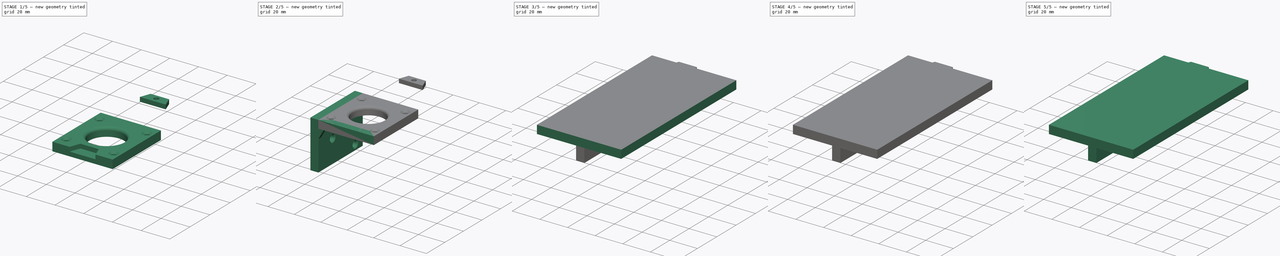
[diagram: build sequence overview — one tinted view per stage of 5, left to right]
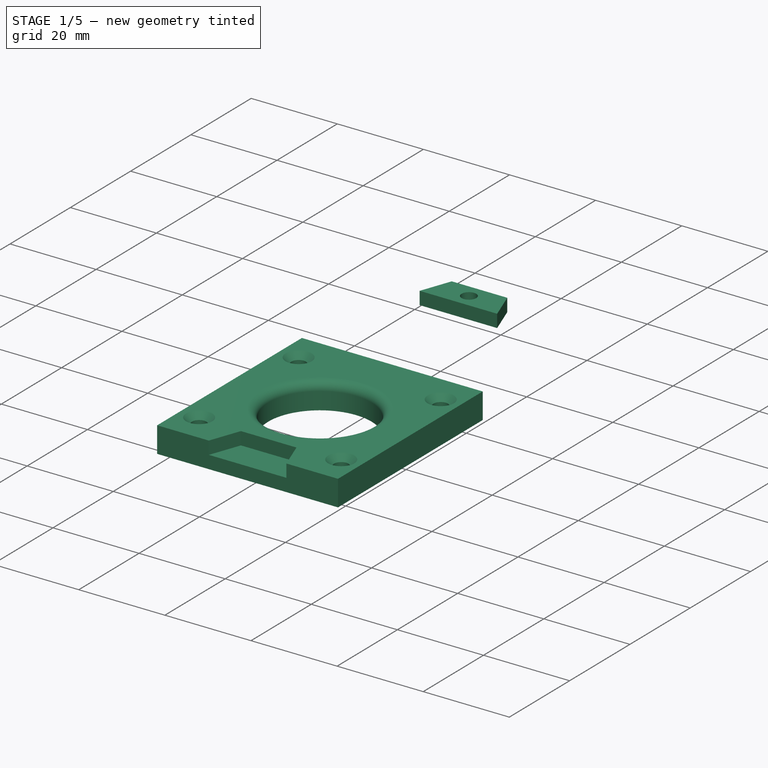
[diagram: stage 1 of 5 — iso view after this stage's code; geometry added in this stage tinted green]
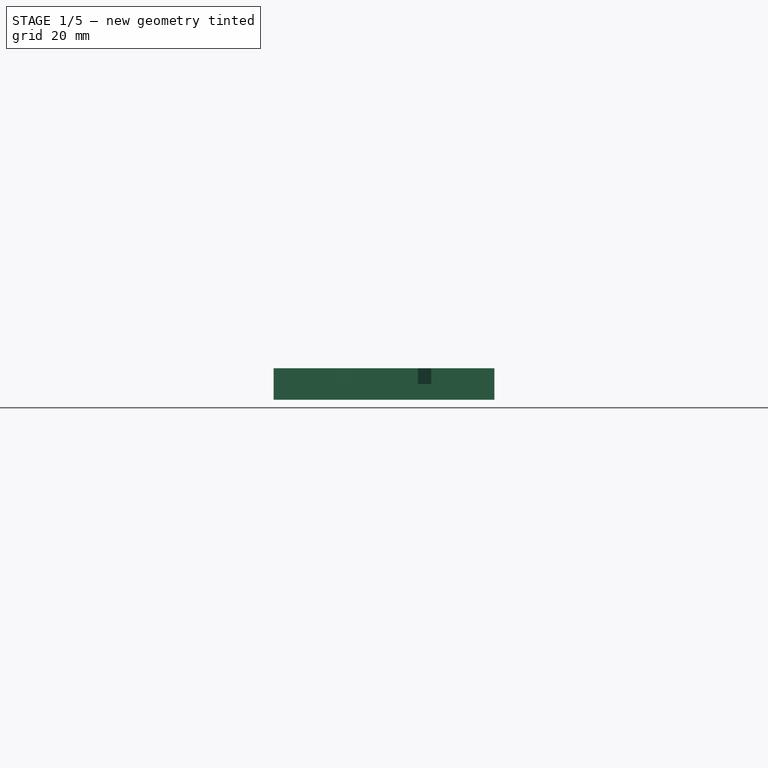
[diagram: stage 1 of 5 — front view after this stage's code; geometry added in this stage tinted green]
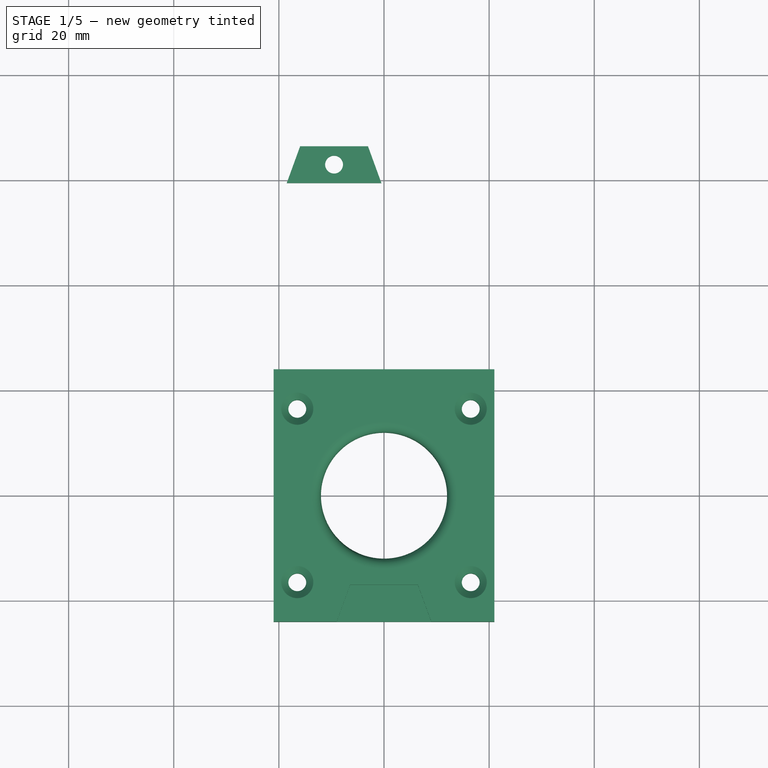
[diagram: stage 1 of 5 — top view after this stage's code; geometry added in this stage tinted green]
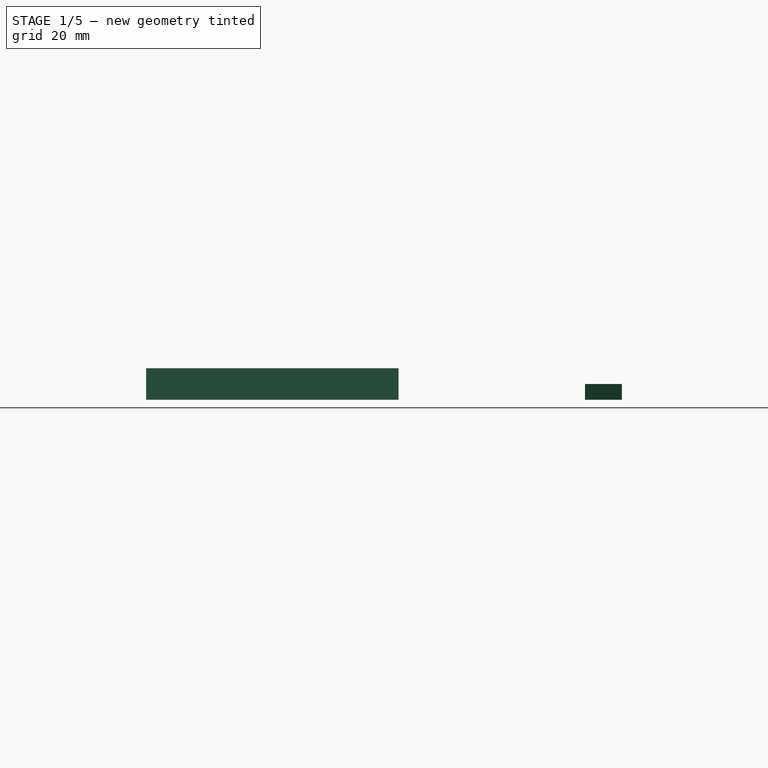
[diagram: stage 1 of 5 — right view after this stage's code; geometry added in this stage tinted green]
FCSTD DOCUMENT  (FreeCAD 0.22R38334 (Git))
Label: StepperHolderA
License: All rights reserved
LicenseURL: http://en.wikipedia.org/wiki/All_rights_reserved
objects: Sketcher::SketchObject×34, PartDesign::Body×19, PartDesign::SubShapeBinder×19, PartDesign::Pad×14, PartDesign::Pocket×11, PartDesign::Hole×8, App::Part×5, PartDesign::Mirrored×4, PartDesign::Fillet×4, Part::Feature×1, Part::Mirroring×1
note: 227 computed .brp shape members not serialized (recipe doc carries the construction recipe); baked Part::Feature solids carry a one-line shape summary decoded from their .brp

FEATURE [Sketcher::SketchObject] Sketch023
  AttachmentSupport = -> [Fillet002]
  ExternalGeometry = -> [Fillet002]
  FullyConstrained = true
  MakeInternals = false
  MapMode = 5
  Placement = pos=(0,0,6) rot=(0,0,1;0rad)
  sketch-geometry (4):
    g0: LineSegment StartX=-9 StartY=24 StartZ=0 EndX=9 EndY=24 EndZ=0
    g1: LineSegment StartX=9 StartY=24 StartZ=0 EndX=6.45221 EndY=17 EndZ=0
    g2: LineSegment StartX=6.45221 StartY=17 StartZ=0 EndX=-6.45221 EndY=17 EndZ=0
    g3: LineSegment StartX=-6.45221 StartY=17 StartZ=0 EndX=-9 EndY=24 EndZ=0
  constraints (10):
    c: PointOnObject(g0,g-3)
    c: Coincident(g0,g1)
    c: Coincident(g1,g2)
    c: Coincident(g2,g3)
    c: Coincident(g3,g0)
    c: Symmetric(g1,g2,g-2)
    c: Symmetric(g0,g0,g-2)
    c: Distance(g2,g0) = 7
    c: Angle(g2,g3) = 1.91986
    c: DistanceX(g0,g0) = 18
FEATURE [PartDesign::SubShapeBinder] Binder016
  BindCopyOnChange = 0
  BindMode = 0
  ClaimChildren = false
  Context = -> Part003 [Body013.Binder016.]
  Fuse = false
  MakeFace = true
  OffsetFill = false
  OffsetIntersection = false
  OffsetJoinType = 0
  OffsetOpenResult = false
  PartialLoad = false
  Relative = true
  Support = -> [Body012[Sketch026.]]
  _Version = 2
FEATURE [PartDesign::SubShapeBinder] Binder017
  BindCopyOnChange = 0
  BindMode = 0
  ClaimChildren = false
  Context = -> Part003 [Body014.Binder017.]
  Fuse = false
  MakeFace = true
  OffsetFill = false
  OffsetIntersection = false
  OffsetJoinType = 0
  OffsetOpenResult = false
  PartialLoad = false
  Relative = true
  Support = -> [Body012[Sketch026.]]
  _Version = 2
FEATURE [PartDesign::SubShapeBinder] Binder018
  BindCopyOnChange = 0
  BindMode = 2
  ClaimChildren = false
  Context = -> Part003 [Body015.Binder018.]
  Fuse = false
  MakeFace = true
  OffsetFill = false
  OffsetIntersection = false
  OffsetJoinType = 0
  OffsetOpenResult = false
  PartialLoad = false
  Placement = pos=(-135.5,-24,0) rot=(-0.57735,0.57735,-0.57735;2.0944rad)
  Relative = true
  _Version = 2
FEATURE [PartDesign::Body] Body015
  AllowCompound = false
  Group = -> [Binder018]
  Origin = -> Origin019
FEATURE [PartDesign::Pad] Pad009
  Direction = (0,0,1)
  Length = 6
  Length2 = 10
  Profile = -> Binder016
  Suppressed = false
  Type = 0
FEATURE [Sketcher::SketchObject] Sketch026
  AttachmentSupport = -> [XY_Plane016]
  FullyConstrained = true
  MakeInternals = false
  MapMode = 5
  sketch-geometry (5):
    g0: LineSegment StartX=-21 StartY=-24 StartZ=0 EndX=21 EndY=-24 EndZ=0
    g1: LineSegment StartX=21 StartY=-24 StartZ=0 EndX=21 EndY=24 EndZ=0
    g2: LineSegment StartX=21 StartY=24 StartZ=0 EndX=-21 EndY=24 EndZ=0
    g3: LineSegment StartX=-21 StartY=24 StartZ=0 EndX=-21 EndY=-24 EndZ=0
    g4: GeomPoint X=0 Y=0 Z=0
  constraints (12):
    c: Coincident(g0,g1)
    c: Coincident(g1,g2)
    c: Coincident(g2,g3)
    c: Coincident(g3,g0)
    c: Horizontal(g0)
    c: Horizontal(g2)
    c: Vertical(g1)
    c: Vertical(g3)
    c: Symmetric(g2,g0,g4)
    c: Coincident(g4,g-1)
    c: DistanceY(g3,g3) = 48
    c: DistanceX(g2,g2) = 42
FEATURE [PartDesign::Body] Body012  label="Master003"
  AllowCompound = false
  Group = -> [Sketch026]
  Origin = -> Origin016
FEATURE [Sketcher::SketchObject] Sketch027
  AttachmentSupport = -> [Pad009]
  FullyConstrained = true
  MakeInternals = false
  MapMode = 5
  Placement = pos=(0,0,6) rot=(0,0,1;0rad)
  sketch-geometry (9):
    g0: LineSegment StartX=-16.5 StartY=-16.5 StartZ=0 EndX=16.5 EndY=-16.5 EndZ=0
    g1: LineSegment StartX=16.5 StartY=-16.5 StartZ=0 EndX=16.5 EndY=16.5 EndZ=0
    g2: LineSegment StartX=16.5 StartY=16.5 StartZ=0 EndX=-16.5 EndY=16.5 EndZ=0
    g3: LineSegment StartX=-16.5 StartY=16.5 StartZ=0 EndX=-16.5 EndY=-16.5 EndZ=0
    g4: GeomPoint X=0 Y=0 Z=0
    g5: Circle CenterX=-16.5 CenterY=16.5 CenterZ=0 NormalX=0 NormalY=0 NormalZ=1 AngleXU=0 Radius=1.5
    g6: Circle CenterX=-16.5 CenterY=-16.5 CenterZ=0 NormalX=0 NormalY=0 NormalZ=1 AngleXU=0 Radius=1.5
    g7: Circle CenterX=16.5 CenterY=-16.5 CenterZ=0 NormalX=0 NormalY=0 NormalZ=1 AngleXU=0 Radius=1.5
    g8: Circle CenterX=16.5 CenterY=16.5 CenterZ=0 NormalX=0 NormalY=0 NormalZ=1 AngleXU=0 Radius=1.5
  constraints (20):
    c: Coincident(g0,g1)
    c: Coincident(g1,g2)
    c: Coincident(g2,g3)
    c: Coincident(g3,g0)
    c: Horizontal(g0)
    c: Horizontal(g2)
    c: Vertical(g1)
    c: Vertical(g3)
    c: Symmetric(g2,g0,g4)
    c: Coincident(g4,g-1)
    c: Equal(g2,g3)
    c: DistanceX(g2,g2) = 33
    c: Coincident(g5,g2)
    c: Coincident(g6,g0)
    c: Coincident(g7,g0)
    c: Coincident(g8,g1)
    c: Equal(g5,g8)
    c: Equal(g8,g7)
    c: Equal(g7,g6)
    c: Diameter(g5) = 3
FEATURE [PartDesign::Hole] Hole007
  BaseFeature = -> Pad009
  CustomThreadClearance = 0
  Depth = 120.592
  DepthType = 1
  Diameter = 3.4
  DrillForDepth = false
  DrillPoint = 1
  DrillPointAngle = 118
  HoleCutCountersinkAngle = 90
  HoleCutCustomValues = false
  HoleCutDepth = 0
  HoleCutDiameter = 6.1
  HoleCutType = 2
  ModelThread = false
  Profile = -> Sketch027
  Suppressed = false
  Tapered = false
  TaperedAngle = 90
  ThreadClass = 0
  ThreadDepth = 120.592
  ThreadDepthType = 0
  ThreadDirection = 0
  ThreadFit = 0
  ThreadSize = 9
  ThreadType = 1
  Threaded = false
  UseCustomThreadClearance = false
FEATURE [Sketcher::SketchObject] Sketch030
  AttachmentSupport = -> [Hole007]
  ExternalGeometry = -> [Sketch027]
  FullyConstrained = true
  MakeInternals = false
  MapMode = 5
  Placement = pos=(0,0,6) rot=(0,0,1;0rad)
  sketch-geometry (1):
    g0: Circle CenterX=-2e-16 CenterY=2e-16 CenterZ=0 NormalX=0 NormalY=0 NormalZ=1 AngleXU=0 Radius=12
  constraints (2):
    c: Symmetric(g-3,g-4,g0)
    c: Diameter(g0) = 24
FEATURE [PartDesign::Pocket] Pocket008
  BaseFeature = -> Hole007
  Direction = (0,0,-1)
  Length = 5
  Length2 = 5
  Profile = -> Sketch030
  ReferenceAxis = -> Sketch030 [N_Axis]
  Suppressed = false
  Type = 1
FEATURE [PartDesign::Fillet] Fillet003
  Base = -> Pocket008 [Edge21]
  BaseFeature = -> Pocket008
  Radius = 2
  SupportTransform = false
  Suppressed = false
  UseAllEdges = false
FEATURE [PartDesign::Body] Body014
  AllowCompound = false
  Group = -> [Binder017,Sketch028,Pad010,Sketch029,Pad011,Mirrored003,Binder025,Sketch039,Hole011]
  Origin = -> Origin018
  Tip = -> Hole011
FEATURE [PartDesign::Pocket] Pocket012
  BaseFeature = -> Fillet003
  Direction = (0,0,-1)
  Length = 3
  Length2 = 5
  Profile = -> Sketch031
  ReferenceAxis = -> Sketch031 [N_Axis]
  Suppressed = false
  Type = 0
FEATURE [PartDesign::Body] Body013
  AllowCompound = false
  Group = -> [Binder016,Pad009,Sketch027,Hole007,Sketch030,Pocket008,Fillet003,Sketch031,Pocket012,Sketch040,Pocket013]
  Origin = -> Origin017
  Tip = -> Pocket013
FEATURE [App::Part] Part003  label="MH004"
  Group = -> [Body012,Body013,Body014,Body015]
  Origin = -> Origin015
FEATURE [PartDesign::SubShapeBinder] Binder029
  BindCopyOnChange = 0
  BindMode = 0
  ClaimChildren = false
  Context = -> Part004 [Body020.Binder029.]
  Fuse = false
  MakeFace = true
  OffsetFill = false
  OffsetIntersection = false
  OffsetJoinType = 0
  OffsetOpenResult = false
  PartialLoad = false
  Relative = true
  Support = -> [Body016[Sketch033.]]
  _Version = 2
FEATURE [Sketcher::SketchObject] Sketch042
  AttachmentSupport = -> [Binder029]
  ExternalGeometry = -> [Binder029]
  FullyConstrained = true
  MakeInternals = false
  MapMode = 5
  sketch-geometry (6):
    g0: LineSegment StartX=-18.5 StartY=-59.5 StartZ=0 EndX=-15.9522 EndY=-66.5 EndZ=0
    g1: LineSegment StartX=-15.9522 StartY=-66.5 StartZ=0 EndX=-3.04779 EndY=-66.5 EndZ=0
    g2: LineSegment StartX=-3.04779 StartY=-66.5 StartZ=0 EndX=-0.5 EndY=-59.5 EndZ=0
    g3: LineSegment StartX=-0.5 StartY=-59.5 StartZ=0 EndX=-18.5 EndY=-59.5 EndZ=0
    g4: LineSegment StartX=-9.5 StartY=-59.5 StartZ=0 EndX=-9.5 EndY=-66.5 EndZ=0
    g5: LineSegment StartX=-30.5 StartY=-59.5 StartZ=0 EndX=11.5 EndY=-59.5 EndZ=0
  constraints (16):
    c: PointOnObject(g0,g-3)
    c: Coincident(g0,g1)
    c: Horizontal(g1)
    c: Coincident(g1,g2)
    c: PointOnObject(g2,g-3)
    c: Coincident(g2,g3)
    c: Coincident(g3,g0)
    c: Symmetric(g0,g2,g4)
    c: Symmetric(g0,g1,g4)
    c: Vertical(g4)
    c: Coincident(g5,g-3)
    c: DistanceX(g5,g5) = 42
    c: Symmetric(g5,g5,g4)
    c: Angle(g1,g0) = 1.91986
    c: Distance(g3,g1) = 7
    c: DistanceX(g3,g3) = 18
FEATURE [PartDesign::Pad] Pad013
  Direction = (0,0,1)
  Length = 3
  Length2 = 10
  Profile = -> Sketch042
  ReferenceAxis = -> Sketch042 [N_Axis]
  Suppressed = false
  Type = 0
FEATURE [Sketcher::SketchObject] Sketch043
  AttachmentSupport = -> [Pad013]
  ExternalGeometry = -> [Pad013]
  FullyConstrained = true
  MakeInternals = false
  MapMode = 5
  Placement = pos=(0,0,0) rot=(1,0,0;3.14159rad)
  sketch-geometry (2):
    g0: LineSegment StartX=-9.5 StartY=66.5 StartZ=0 EndX=-9.5 EndY=59.5 EndZ=0
    g1: Circle CenterX=-9.5 CenterY=63 CenterZ=0 NormalX=0 NormalY=0 NormalZ=1 AngleXU=0 Radius=1.25
  constraints (4):
    c: Symmetric(g-3,g-3,g0)
    c: Symmetric(g-4,g-4,g0)
    c: Symmetric(g0,g0,g1)
    c: Diameter(g1) = 2.5
FEATURE [PartDesign::Hole] Hole012
  BaseFeature = -> Pad013
  CustomThreadClearance = 0
  Depth = 25
  DepthType = 0
  Diameter = 3.4
  DrillForDepth = false
  DrillPoint = 1
  DrillPointAngle = 118
  HoleCutCountersinkAngle = 90
  HoleCutCustomValues = false
  HoleCutDepth = 0
  HoleCutDiameter = 6.1
  HoleCutType = 2
  ModelThread = false
  Profile = -> Sketch043
  Suppressed = false
  Tapered = false
  TaperedAngle = 90
  ThreadClass = 0
  ThreadDepth = 25
  ThreadDepthType = 0
  ThreadDirection = 0
  ThreadFit = 0
  ThreadSize = 9
  ThreadType = 1
  Threaded = false
  UseCustomThreadClearance = false
FEATURE [PartDesign::Body] Body020
  AllowCompound = false
  Group = -> [Binder029,Sketch042,Pad013,Sketch043,Hole012]
  Origin = -> Origin025
  Tip = -> Hole012
FEATURE [Part::Mirroring] Part__Mirroring  label="Body020 (Mirror #1)"
  Base = (0,0,0)
  Normal = (0,1,0)
  Source = -> Body020
FEATURE [App::Part] Part004  label="CH001"
  Group = -> [Body016,Body017,Body020,Part__Mirroring]
  Origin = -> Origin020
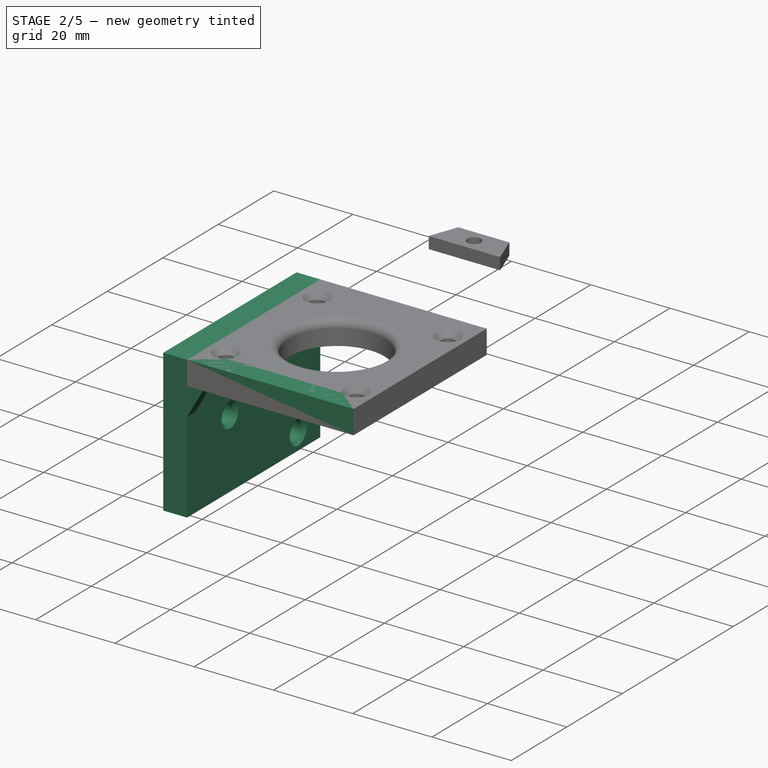
[diagram: stage 2 of 5 — iso view after this stage's code; geometry added in this stage tinted green]
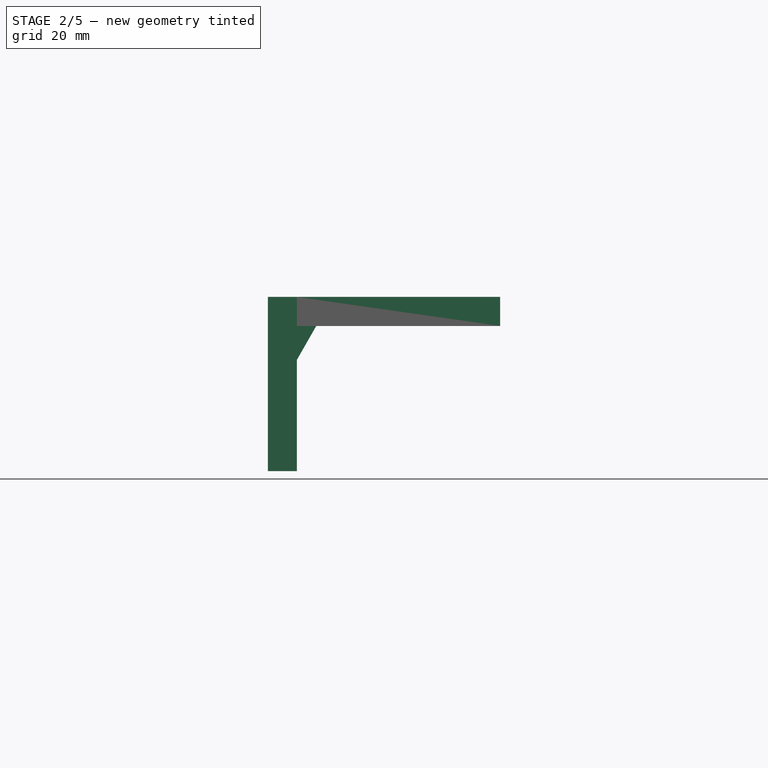
[diagram: stage 2 of 5 — front view after this stage's code; geometry added in this stage tinted green]
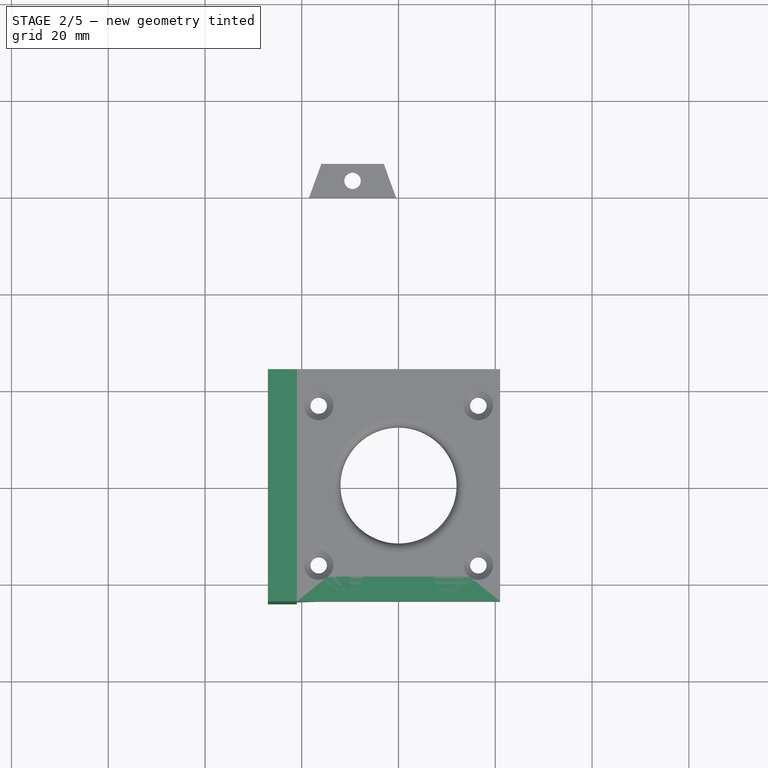
[diagram: stage 2 of 5 — top view after this stage's code; geometry added in this stage tinted green]
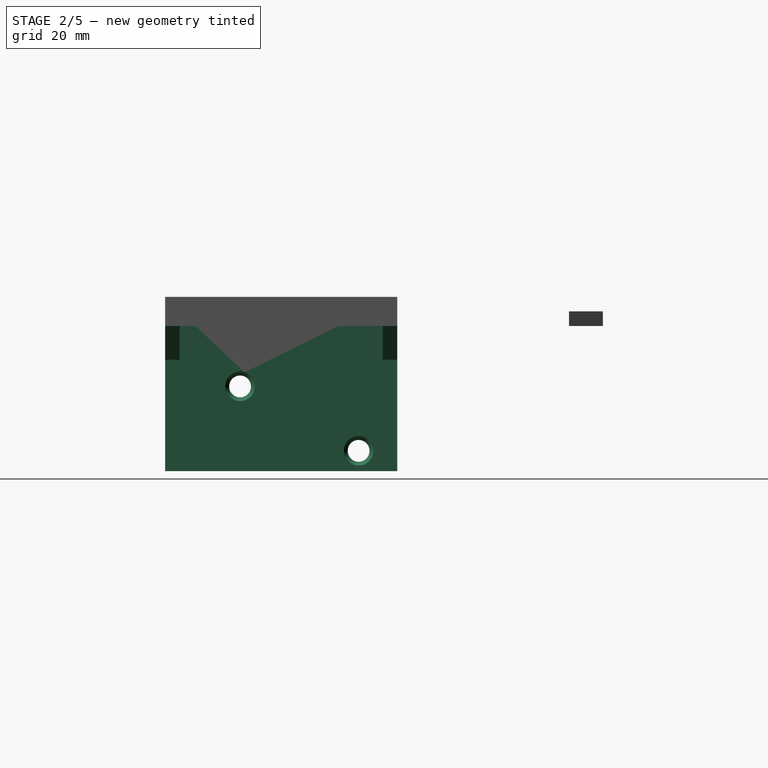
[diagram: stage 2 of 5 — right view after this stage's code; geometry added in this stage tinted green]
FEATURE [PartDesign::Body] Body002
  AllowCompound = false
  Group = -> [Binder001,Sketch002,Pad001,Sketch003,Pad002,Mirrored,Binder011,Sketch017,Hole004]
  Origin = -> Origin003
  Tip = -> Hole004
FEATURE [App::Part] Part  label="MH001"
  Group = -> [Body,Body001,Body002,Body003]
  Origin = -> Origin
FEATURE [PartDesign::SubShapeBinder] Binder012
  BindCopyOnChange = 0
  BindMode = 0
  ClaimChildren = false
  Context = -> Part002 [Body009.Binder012.]
  Fuse = false
  MakeFace = true
  OffsetFill = false
  OffsetIntersection = false
  OffsetJoinType = 0
  OffsetOpenResult = false
  PartialLoad = false
  Relative = true
  Support = -> [Body008[Sketch018.]]
  _Version = 2
FEATURE [PartDesign::SubShapeBinder] Binder013
  BindCopyOnChange = 0
  BindMode = 0
  ClaimChildren = false
  Context = -> Part002 [Body010.Binder013.]
  Fuse = false
  MakeFace = true
  OffsetFill = false
  OffsetIntersection = false
  OffsetJoinType = 0
  OffsetOpenResult = false
  PartialLoad = false
  Relative = true
  Support = -> [Body008[Sketch018.]]
  _Version = 2
FEATURE [PartDesign::SubShapeBinder] Binder014
  BindCopyOnChange = 0
  BindMode = 2
  ClaimChildren = false
  Context = -> Part001 [Body007.Binder010.]
  Fuse = false
  MakeFace = true
  OffsetFill = false
  OffsetIntersection = false
  OffsetJoinType = 0
  OffsetOpenResult = false
  PartialLoad = false
  Placement = pos=(-135.5,-191,0) rot=(-0.57735,0.57735,-0.57735;2.0944rad)
  Relative = true
  _Version = 2
FEATURE [PartDesign::Pad] Pad006
  Direction = (0,0,1)
  Length = 6
  Length2 = 10
  Profile = -> Binder012
  Suppressed = false
  Type = 0
FEATURE [Sketcher::SketchObject] Sketch018
  AttachmentSupport = -> [XY_Plane011]
  FullyConstrained = true
  MakeInternals = false
  MapMode = 5
  sketch-geometry (5):
    g0: LineSegment StartX=-21 StartY=-24 StartZ=0 EndX=21 EndY=-24 EndZ=0
    g1: LineSegment StartX=21 StartY=-24 StartZ=0 EndX=21 EndY=24 EndZ=0
    g2: LineSegment StartX=21 StartY=24 StartZ=0 EndX=-21 EndY=24 EndZ=0
    g3: LineSegment StartX=-21 StartY=24 StartZ=0 EndX=-21 EndY=-24 EndZ=0
    g4: GeomPoint X=0 Y=0 Z=0
  constraints (12):
    c: Coincident(g0,g1)
    c: Coincident(g1,g2)
    c: Coincident(g2,g3)
    c: Coincident(g3,g0)
    c: Horizontal(g0)
    c: Horizontal(g2)
    c: Vertical(g1)
    c: Vertical(g3)
    c: Symmetric(g2,g0,g4)
    c: Coincident(g4,g-1)
    c: DistanceY(g3,g3) = 48
    c: DistanceX(g2,g2) = 42
FEATURE [PartDesign::Body] Body008  label="Master002"
  AllowCompound = false
  Group = -> [Sketch018]
  Origin = -> Origin011
FEATURE [Sketcher::SketchObject] Sketch019
  AttachmentSupport = -> [Pad006]
  FullyConstrained = true
  MakeInternals = false
  MapMode = 5
  Placement = pos=(0,0,6) rot=(0,0,1;0rad)
  sketch-geometry (9):
    g0: LineSegment StartX=-16.5 StartY=-16.5 StartZ=0 EndX=16.5 EndY=-16.5 EndZ=0
    g1: LineSegment StartX=16.5 StartY=-16.5 StartZ=0 EndX=16.5 EndY=16.5 EndZ=0
    g2: LineSegment StartX=16.5 StartY=16.5 StartZ=0 EndX=-16.5 EndY=16.5 EndZ=0
    g3: LineSegment StartX=-16.5 StartY=16.5 StartZ=0 EndX=-16.5 EndY=-16.5 EndZ=0
    g4: GeomPoint X=0 Y=0 Z=0
    g5: Circle CenterX=-16.5 CenterY=16.5 CenterZ=0 NormalX=0 NormalY=0 NormalZ=1 AngleXU=0 Radius=1.5
    g6: Circle CenterX=-16.5 CenterY=-16.5 CenterZ=0 NormalX=0 NormalY=0 NormalZ=1 AngleXU=0 Radius=1.5
    g7: Circle CenterX=16.5 CenterY=-16.5 CenterZ=0 NormalX=0 NormalY=0 NormalZ=1 AngleXU=0 Radius=1.5
    g8: Circle CenterX=16.5 CenterY=16.5 CenterZ=0 NormalX=0 NormalY=0 NormalZ=1 AngleXU=0 Radius=1.5
  constraints (20):
    c: Coincident(g0,g1)
    c: Coincident(g1,g2)
    c: Coincident(g2,g3)
    c: Coincident(g3,g0)
    c: Horizontal(g0)
    c: Horizontal(g2)
    c: Vertical(g1)
    c: Vertical(g3)
    c: Symmetric(g2,g0,g4)
    c: Coincident(g4,g-1)
    c: Equal(g2,g3)
    c: DistanceX(g2,g2) = 33
    c: Coincident(g5,g2)
    c: Coincident(g6,g0)
    c: Coincident(g7,g0)
    c: Coincident(g8,g1)
    c: Equal(g5,g8)
    c: Equal(g8,g7)
    c: Equal(g7,g6)
    c: Diameter(g5) = 3
FEATURE [PartDesign::Hole] Hole005
  BaseFeature = -> Pad006
  CustomThreadClearance = 0
  Depth = 120.592
  DepthType = 1
  Diameter = 3.4
  DrillForDepth = false
  DrillPoint = 1
  DrillPointAngle = 118
  HoleCutCountersinkAngle = 90
  HoleCutCustomValues = false
  HoleCutDepth = 0
  HoleCutDiameter = 6.1
  HoleCutType = 2
  ModelThread = false
  Profile = -> Sketch019
  Suppressed = false
  Tapered = false
  TaperedAngle = 90
  ThreadClass = 0
  ThreadDepth = 120.592
  ThreadDepthType = 0
  ThreadDirection = 0
  ThreadFit = 0
  ThreadSize = 9
  ThreadType = 1
  Threaded = false
  UseCustomThreadClearance = false
FEATURE [Sketcher::SketchObject] Sketch022
  AttachmentSupport = -> [Hole005]
  ExternalGeometry = -> [Sketch019]
  FullyConstrained = true
  MakeInternals = false
  MapMode = 5
  Placement = pos=(0,0,6) rot=(0,0,1;0rad)
  sketch-geometry (1):
    g0: Circle CenterX=-2e-16 CenterY=2e-16 CenterZ=0 NormalX=0 NormalY=0 NormalZ=1 AngleXU=0 Radius=12
  constraints (2):
    c: Symmetric(g-3,g-4,g0)
    c: Diameter(g0) = 24
FEATURE [PartDesign::Pocket] Pocket005
  BaseFeature = -> Hole005
  Direction = (0,0,-1)
  Length = 5
  Length2 = 5
  Profile = -> Sketch022
  ReferenceAxis = -> Sketch022 [N_Axis]
  Suppressed = false
  Type = 1
FEATURE [PartDesign::Fillet] Fillet002
  Base = -> Pocket005 [Edge21]
  BaseFeature = -> Pocket005
  Radius = 2
  SupportTransform = false
  Suppressed = false
  UseAllEdges = false
FEATURE [Sketcher::SketchObject] Sketch028
  AttachmentSupport = -> [Binder017]
  ExternalGeometry = -> [Binder017]
  FullyConstrained = true
  MakeInternals = false
  MapMode = 5
  sketch-geometry (4):
    g0: LineSegment StartX=-21 StartY=24 StartZ=0 EndX=-27 EndY=24 EndZ=0
    g1: LineSegment StartX=-27 StartY=24 StartZ=0 EndX=-27 EndY=-24 EndZ=0
    g2: LineSegment StartX=-27 StartY=-24 StartZ=0 EndX=-21 EndY=-24 EndZ=0
    g3: LineSegment StartX=-21 StartY=-24 StartZ=0 EndX=-21 EndY=24 EndZ=0
  constraints (10):
    c: Coincident(g0,g1)
    c: Coincident(g1,g2)
    c: Coincident(g2,g3)
    c: Coincident(g3,g0)
    c: Horizontal(g0)
    c: Horizontal(g2)
    c: Vertical(g1)
    c: Coincident(g0,g-3)
    c: Coincident(g2,g-3)
    c: DistanceX(g2,g2) = 6
FEATURE [PartDesign::Pad] Pad010
  Direction = (0,0,1)
  Length = 6
  Length2 = 30
  Profile = -> Sketch028
  ReferenceAxis = -> Sketch028 [N_Axis]
  Suppressed = false
  Type = 4
FEATURE [Sketcher::SketchObject] Sketch029
  AttachmentSupport = -> [Pad010]
  ExternalGeometry = -> [Binder017,Pad010]
  FullyConstrained = true
  MakeInternals = false
  MapMode = 5
  Placement = pos=(0,-24,0) rot=(1,0,0;1.5708rad)
  sketch-geometry (3):
    g0: LineSegment StartX=-21 StartY=0 StartZ=0 EndX=-21 EndY=-7 EndZ=0
    g1: LineSegment StartX=-21 StartY=-7 StartZ=0 EndX=-17 EndY=0 EndZ=0
    g2: LineSegment StartX=-17 StartY=0 StartZ=0 EndX=-21 EndY=0 EndZ=0
  constraints (9):
    c: Coincident(g0,g1)
    c: Coincident(g1,g2)
    c: DistanceX(g2,g2) = 4
    c: DistanceY(g0,g0) = 7
    c: PointOnObject(g0,g-4)
    c: Coincident(g2,g0)
    c: PointOnObject(g0,g-4)
    c: Horizontal(g2)
    c: PointOnObject(g1,g-1)
FEATURE [PartDesign::Pad] Pad011
  BaseFeature = -> Pad010
  Direction = (0,-1,2e-16)
  Length = 3
  Length2 = 10
  Profile = -> Sketch029
  ReferenceAxis = -> Sketch029 [N_Axis]
  Reversed = true
  Suppressed = false
  Type = 0
FEATURE [PartDesign::Mirrored] Mirrored003
  BaseFeature = -> Pad011
  MirrorPlane = -> XZ_Plane018
  Originals = -> [Pad011]
  Suppressed = false
  TransformMode = 0
FEATURE [PartDesign::Body] Body009
  AllowCompound = false
  Group = -> [Binder012,Pad006,Sketch019,Hole005,Sketch022,Pocket005,Fillet002,Sketch023,Pocket010,Sketch037,Pocket011]
  Origin = -> Origin012
  Tip = -> Pocket011
FEATURE [App::Part] Part002  label="MH003"
  Group = -> [Body008,Body009,Body010,Body011]
  Origin = -> Origin010
FEATURE [PartDesign::SubShapeBinder] Binder025
  BindCopyOnChange = 0
  BindMode = 2
  ClaimChildren = false
  Context = -> Part002 [Body011.Binder025.]
  Fuse = false
  MakeFace = true
  OffsetFill = false
  OffsetIntersection = false
  OffsetJoinType = 0
  OffsetOpenResult = false
  PartialLoad = false
  Placement = pos=(-21.5,24,0) rot=(-0.57735,-0.57735,0.57735;2.0944rad)
  Relative = true
  _Version = 2
FEATURE [Sketcher::SketchObject] Sketch039
  AttachmentSupport = -> [Binder025]
  ExternalGeometry = -> [Binder025]
  FullyConstrained = true
  MakeInternals = false
  MapMode = 5
  Placement = pos=(-21,24,0) rot=(0.57735,0.57735,0.57735;2.0944rad)
  sketch-geometry (2):
    g0: Circle CenterX=-32.5 CenterY=-12.5 CenterZ=0 NormalX=0 NormalY=0 NormalZ=1 AngleXU=0 Radius=2
    g1: Circle CenterX=-8 CenterY=-25.8112 CenterZ=0 NormalX=0 NormalY=0 NormalZ=1 AngleXU=0 Radius=2.65
  constraints (4):
    c: Coincident(g0,g-4)
    c: PointOnObject(g-4,g0)
    c: Coincident(g1,g-3)
    c: PointOnObject(g-3,g1)
FEATURE [PartDesign::Hole] Hole011
  BaseFeature = -> Mirrored003
  CustomThreadClearance = 0
  Depth = 25
  DepthType = 0
  Diameter = 4.5
  DrillForDepth = false
  DrillPoint = 1
  DrillPointAngle = 118
  HoleCutCountersinkAngle = 90
  HoleCutCustomValues = false
  HoleCutDepth = 0
  HoleCutDiameter = 6.1
  HoleCutType = 2
  ModelThread = false
  Profile = -> Sketch039
  Suppressed = false
  Tapered = false
  TaperedAngle = 90
  ThreadClass = 0
  ThreadDepth = 25
  ThreadDepthType = 0
  ThreadDirection = 0
  ThreadFit = 0
  ThreadSize = 11
  ThreadType = 1
  Threaded = false
  UseCustomThreadClearance = false
FEATURE [Sketcher::SketchObject] Sketch040
  AttachmentSupport = -> [Pocket012]
  ExternalGeometry = -> [Pocket012]
  FullyConstrained = true
  MakeInternals = false
  MapMode = 5
  Placement = pos=(0,0,3) rot=(0,0,1;0rad)
  sketch-geometry (2):
    g0: Circle CenterX=0 CenterY=-20.5 CenterZ=0 NormalX=0 NormalY=0 NormalZ=1 AngleXU=0 Radius=1.25
    g1: LineSegment StartX=0 StartY=-17 StartZ=0 EndX=0 EndY=-24 EndZ=0
  constraints (5):
    c: PointOnObject(g0,g-2)
    c: Symmetric(g-3,g-3,g1)
    c: Symmetric(g1,g1,g0)
    c: Diameter(g0) = 2.5
    c: PointOnObject(g1,g-4)
FEATURE [PartDesign::Pocket] Pocket013
  BaseFeature = -> Pocket012
  Direction = (0,0,-1)
  Length = 5
  Length2 = 5
  Profile = -> Sketch040
  ReferenceAxis = -> Sketch040 [N_Axis]
  Suppressed = false
  Type = 1
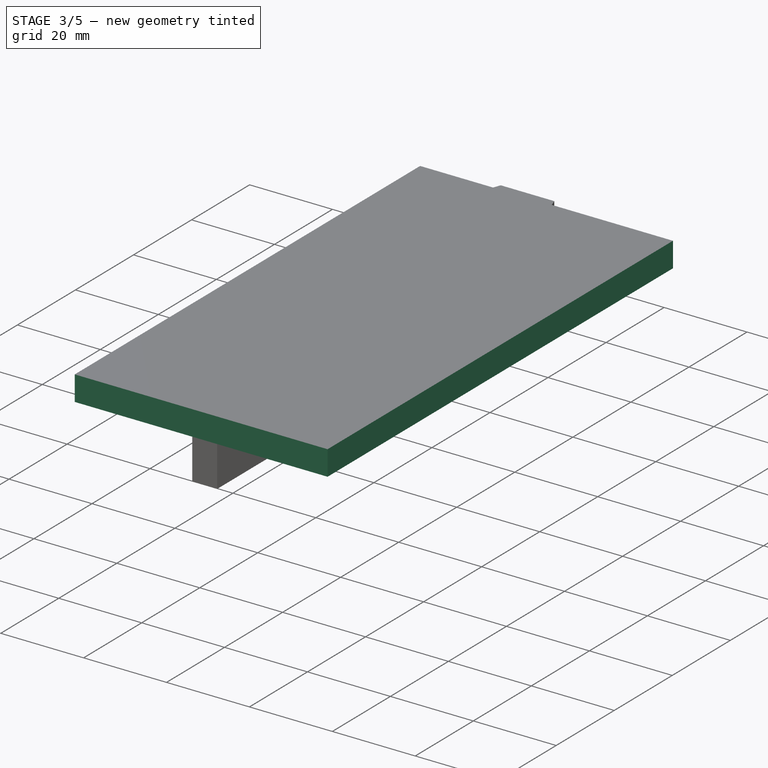
[diagram: stage 3 of 5 — iso view after this stage's code; geometry added in this stage tinted green]
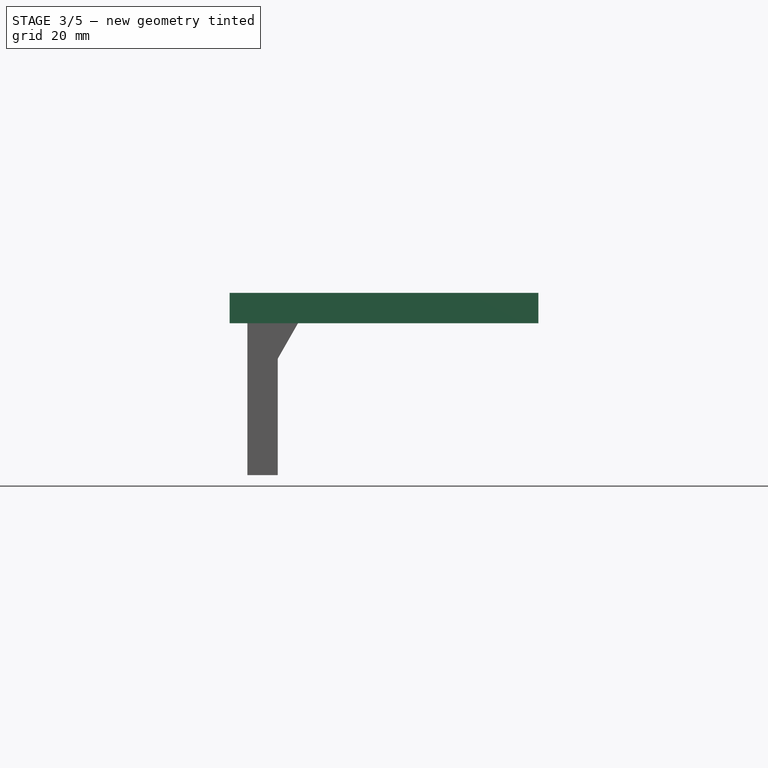
[diagram: stage 3 of 5 — front view after this stage's code; geometry added in this stage tinted green]
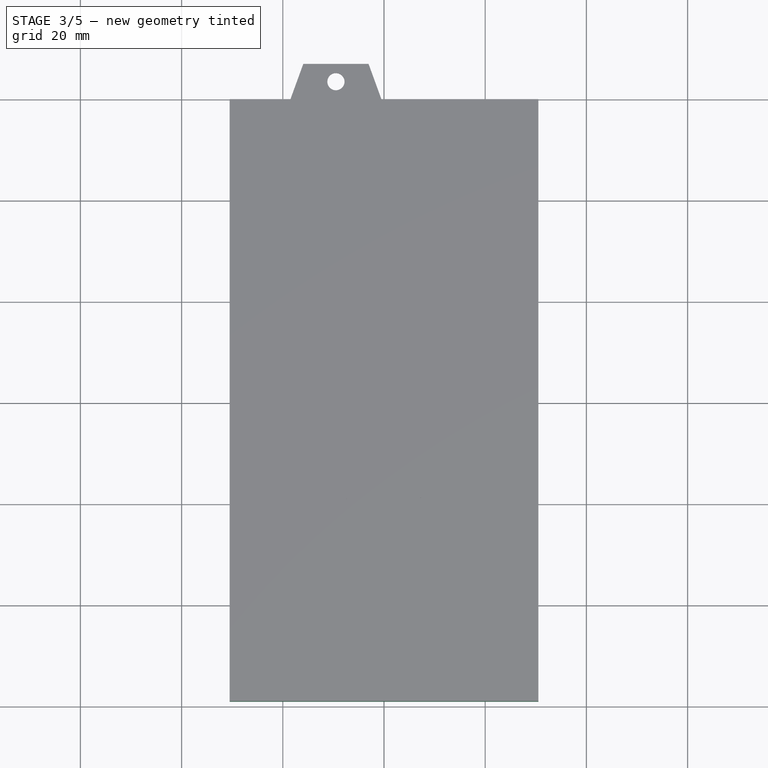
[diagram: stage 3 of 5 — top view after this stage's code; geometry added in this stage tinted green]
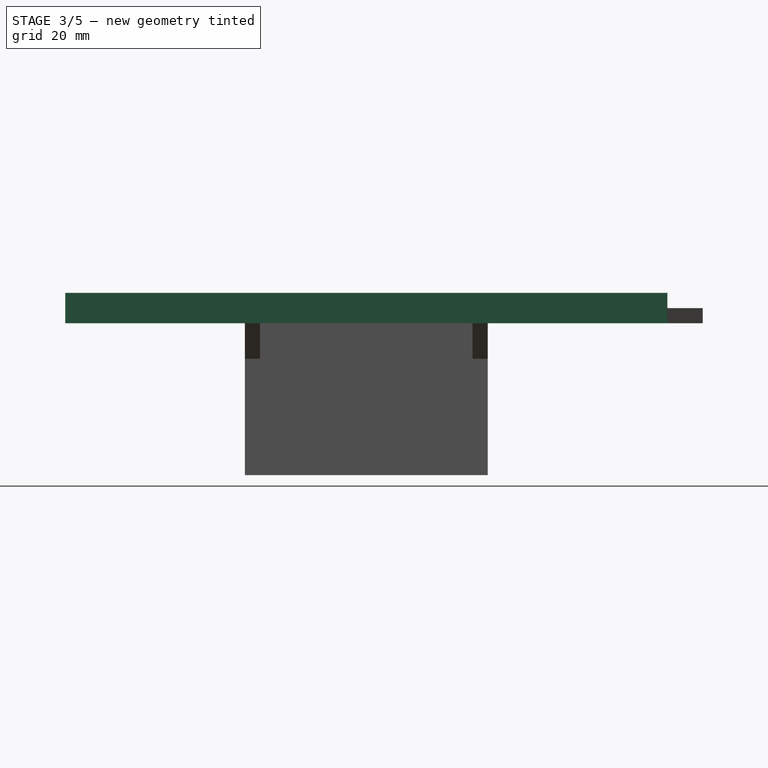
[diagram: stage 3 of 5 — right view after this stage's code; geometry added in this stage tinted green]
FEATURE [PartDesign::SubShapeBinder] Binder001
  BindCopyOnChange = 0
  BindMode = 0
  ClaimChildren = false
  Context = -> Part [Body002.Binder001.]
  Fuse = false
  MakeFace = true
  OffsetFill = false
  OffsetIntersection = false
  OffsetJoinType = 0
  OffsetOpenResult = false
  PartialLoad = false
  Relative = true
  Support = -> [Body[Sketch.]]
  _Version = 2
FEATURE [Sketcher::SketchObject] Sketch002
  AttachmentSupport = -> [Binder001]
  ExternalGeometry = -> [Binder001]
  FullyConstrained = false
  MakeInternals = false
  MapMode = 5
  sketch-geometry (4):
    g0: LineSegment StartX=-21 StartY=24 StartZ=0 EndX=-27 EndY=24 EndZ=0
    g1: LineSegment StartX=-27 StartY=24 StartZ=0 EndX=-27 EndY=-24 EndZ=0
    g2: LineSegment StartX=-27 StartY=-24 StartZ=0 EndX=-21 EndY=-24 EndZ=0
    g3: LineSegment StartX=-21 StartY=-24 StartZ=0 EndX=-21 EndY=24 EndZ=0
  constraints (8):
    c: Coincident(g0,g1)
    c: Coincident(g1,g2)
    c: Coincident(g2,g3)
    c: Coincident(g3,g0)
    c: Horizontal(g0)
    c: Horizontal(g2)
    c: Vertical(g1)
    c: DistanceX(g2,g2) = 6
FEATURE [PartDesign::Pad] Pad001
  Direction = (0,0,1)
  Length = 6
  Length2 = 30
  Profile = -> Sketch002
  ReferenceAxis = -> Sketch002 [N_Axis]
  Suppressed = false
  Type = 4
FEATURE [Sketcher::SketchObject] Sketch020
  AttachmentSupport = -> [Binder013]
  ExternalGeometry = -> [Binder013]
  FullyConstrained = true
  MakeInternals = false
  MapMode = 5
  sketch-geometry (4):
    g0: LineSegment StartX=-21 StartY=24 StartZ=0 EndX=-27 EndY=24 EndZ=0
    g1: LineSegment StartX=-27 StartY=24 StartZ=0 EndX=-27 EndY=-24 EndZ=0
    g2: LineSegment StartX=-27 StartY=-24 StartZ=0 EndX=-21 EndY=-24 EndZ=0
    g3: LineSegment StartX=-21 StartY=-24 StartZ=0 EndX=-21 EndY=24 EndZ=0
  constraints (10):
    c: Coincident(g0,g1)
    c: Coincident(g1,g2)
    c: Coincident(g2,g3)
    c: Coincident(g3,g0)
    c: Horizontal(g0)
    c: Horizontal(g2)
    c: Vertical(g1)
    c: Coincident(g0,g-3)
    c: Coincident(g2,g-3)
    c: DistanceX(g2,g2) = 6
FEATURE [PartDesign::Pad] Pad007
  Direction = (0,0,1)
  Length = 6
  Length2 = 30
  Profile = -> Sketch020
  ReferenceAxis = -> Sketch020 [N_Axis]
  Suppressed = false
  Type = 4
FEATURE [Sketcher::SketchObject] Sketch021
  AttachmentSupport = -> [Pad007]
  ExternalGeometry = -> [Binder013,Pad007]
  FullyConstrained = true
  MakeInternals = false
  MapMode = 5
  Placement = pos=(0,-24,0) rot=(1,0,0;1.5708rad)
  sketch-geometry (3):
    g0: LineSegment StartX=-21 StartY=0 StartZ=0 EndX=-21 EndY=-7 EndZ=0
    g1: LineSegment StartX=-21 StartY=-7 StartZ=0 EndX=-17 EndY=0 EndZ=0
    g2: LineSegment StartX=-17 StartY=0 StartZ=0 EndX=-21 EndY=0 EndZ=0
  constraints (9):
    c: Coincident(g0,g1)
    c: Coincident(g1,g2)
    c: DistanceX(g2,g2) = 4
    c: DistanceY(g0,g0) = 7
    c: PointOnObject(g0,g-4)
    c: Coincident(g2,g0)
    c: PointOnObject(g0,g-4)
    c: Horizontal(g2)
    c: PointOnObject(g1,g-1)
FEATURE [PartDesign::Pad] Pad008
  BaseFeature = -> Pad007
  Direction = (0,-1,2e-16)
  Length = 3
  Length2 = 10
  Profile = -> Sketch021
  ReferenceAxis = -> Sketch021 [N_Axis]
  Reversed = true
  Suppressed = false
  Type = 0
FEATURE [PartDesign::Mirrored] Mirrored002
  BaseFeature = -> Pad008
  MirrorPlane = -> XZ_Plane013
  Originals = -> [Pad008]
  Suppressed = false
  TransformMode = 0
FEATURE [Sketcher::SketchObject] Sketch031
  AttachmentSupport = -> [Fillet003]
  ExternalGeometry = -> [Fillet003]
  FullyConstrained = true
  MakeInternals = false
  MapMode = 5
  Placement = pos=(0,0,6) rot=(0,0,1;0rad)
  sketch-geometry (4):
    g0: LineSegment StartX=-9 StartY=-24 StartZ=0 EndX=-6.45221 EndY=-17 EndZ=0
    g1: LineSegment StartX=-6.45221 StartY=-17 StartZ=0 EndX=6.45221 EndY=-17 EndZ=0
    g2: LineSegment StartX=6.45221 StartY=-17 StartZ=0 EndX=9 EndY=-24 EndZ=0
    g3: LineSegment StartX=9 StartY=-24 StartZ=0 EndX=-9 EndY=-24 EndZ=0
  constraints (10):
    c: PointOnObject(g0,g-3)
    c: Coincident(g0,g1)
    c: Coincident(g1,g2)
    c: Coincident(g2,g3)
    c: Coincident(g3,g0)
    c: Symmetric(g0,g2,g-2)
    c: Symmetric(g0,g1,g-2)
    c: Angle(g0,g1) = 1.91986
    c: DistanceX(g3,g3) = 18
    c: Distance(g1,g3) = 7
FEATURE [Sketcher::SketchObject] Sketch033
  AttachmentSupport = -> [XY_Plane021]
  FullyConstrained = true
  MakeInternals = false
  MapMode = 5
  expr: Constraints[10] = 215 - 48 * 2
  sketch-geometry (5):
    g0: LineSegment StartX=-30.5 StartY=-59.5 StartZ=0 EndX=30.5 EndY=-59.5 EndZ=0
    g1: LineSegment StartX=30.5 StartY=-59.5 StartZ=0 EndX=30.5 EndY=59.5 EndZ=0
    g2: LineSegment StartX=30.5 StartY=59.5 StartZ=0 EndX=-30.5 EndY=59.5 EndZ=0
    g3: LineSegment StartX=-30.5 StartY=59.5 StartZ=0 EndX=-30.5 EndY=-59.5 EndZ=0
    g4: GeomPoint X=0 Y=0 Z=0
  constraints (12):
    c: Coincident(g0,g1)
    c: Coincident(g1,g2)
    c: Coincident(g2,g3)
    c: Coincident(g3,g0)
    c: Horizontal(g0)
    c: Horizontal(g2)
    c: Vertical(g1)
    c: Vertical(g3)
    c: Symmetric(g2,g0,g4)
    c: Coincident(g4,g-1)
    c: DistanceY(g1,g1) = 119
    c: DistanceX(g2,g2) = 61
FEATURE [PartDesign::Body] Body016  label="Master004"
  AllowCompound = false
  Group = -> [Sketch033]
  Origin = -> Origin021
FEATURE [PartDesign::SubShapeBinder] Binder020
  BindCopyOnChange = 0
  BindMode = 0
  ClaimChildren = false
  Context = -> Part004 [Body017.Binder020.]
  Fuse = false
  MakeFace = true
  OffsetFill = false
  OffsetIntersection = false
  OffsetJoinType = 0
  OffsetOpenResult = false
  PartialLoad = false
  Relative = true
  Support = -> [Body016[Sketch033.]]
  _Version = 2
FEATURE [PartDesign::Pad] Pad012
  Direction = (0,0,1)
  Length = 6
  Length2 = 10
  Profile = -> Binder020
  Suppressed = false
  Type = 0
FEATURE [PartDesign::Body] Body017  label="Body"
  AllowCompound = false
  Group = -> [Binder020,Pad012]
  Origin = -> Origin022
  Tip = -> Pad012
FEATURE [PartDesign::SubShapeBinder] Binder022
  BindCopyOnChange = 0
  BindMode = 2
  ClaimChildren = false
  Context = -> Part002 [Body011.Binder022.]
  Fuse = false
  MakeFace = true
  OffsetFill = false
  OffsetIntersection = false
  OffsetJoinType = 0
  OffsetOpenResult = false
  PartialLoad = false
  Placement = pos=(-21.5,191,0) rot=(-0.57735,-0.57735,0.57735;2.0944rad)
  Relative = true
  _Version = 2
FEATURE [PartDesign::Body] Body011
  AllowCompound = false
  Group = -> [Binder014,Binder022]
  Origin = -> Origin014
FEATURE [PartDesign::SubShapeBinder] Binder024
  BindCopyOnChange = 0
  BindMode = 2
  ClaimChildren = false
  Context = -> Part002 [Body011.Binder024.]
  Fuse = false
  MakeFace = true
  OffsetFill = false
  OffsetIntersection = false
  OffsetJoinType = 0
  OffsetOpenResult = false
  PartialLoad = false
  Placement = pos=(-21.5,191,0) rot=(-0.57735,-0.57735,0.57735;2.0944rad)
  Relative = true
  _Version = 2
FEATURE [Sketcher::SketchObject] Sketch036
  AttachmentSupport = -> [Binder024]
  ExternalGeometry = -> [Binder024]
  FullyConstrained = true
  MakeInternals = false
  MapMode = 5
  Placement = pos=(-21,191,0) rot=(0.57735,0.57735,0.57735;2.0944rad)
  sketch-geometry (2):
    g0: Circle CenterX=-190 CenterY=-25.5018 CenterZ=0 NormalX=0 NormalY=0 NormalZ=1 AngleXU=0 Radius=1.65
    g1: Circle CenterX=-182.5 CenterY=-12.5 CenterZ=0 NormalX=0 NormalY=0 NormalZ=1 AngleXU=0 Radius=1.65
  constraints (4):
    c: Coincident(g0,g-4)
    c: PointOnObject(g-4,g0)
    c: Coincident(g1,g-5)
    c: PointOnObject(g-5,g1)
FEATURE [PartDesign::Hole] Hole010
  BaseFeature = -> Mirrored002
  CustomThreadClearance = 0
  Depth = 25
  DepthType = 0
  Diameter = 4.5
  DrillForDepth = false
  DrillPoint = 1
  DrillPointAngle = 118
  HoleCutCountersinkAngle = 90
  HoleCutCustomValues = false
  HoleCutDepth = 0
  HoleCutDiameter = 6.1
  HoleCutType = 2
  ModelThread = false
  Profile = -> Sketch036
  Suppressed = false
  Tapered = false
  TaperedAngle = 90
  ThreadClass = 0
  ThreadDepth = 25
  ThreadDepthType = 0
  ThreadDirection = 0
  ThreadFit = 0
  ThreadSize = 11
  ThreadType = 1
  Threaded = false
  UseCustomThreadClearance = false
FEATURE [PartDesign::Body] Body010
  AllowCompound = false
  Group = -> [Binder013,Sketch020,Pad007,Sketch021,Pad008,Mirrored002,Binder024,Sketch036,Hole010]
  Origin = -> Origin013
  Tip = -> Hole010
FEATURE [PartDesign::Pocket] Pocket010
  BaseFeature = -> Fillet002
  Direction = (0,0,-1)
  Length = 3
  Length2 = 5
  Profile = -> Sketch023
  ReferenceAxis = -> Sketch023 [N_Axis]
  Suppressed = false
  Type = 0
FEATURE [Sketcher::SketchObject] Sketch037
  AttachmentSupport = -> [Pocket010]
  ExternalGeometry = -> [Pocket010]
  FullyConstrained = true
  MakeInternals = false
  MapMode = 5
  Placement = pos=(0,0,3) rot=(0,0,1;0rad)
  sketch-geometry (2):
    g0: LineSegment StartX=0 StartY=24 StartZ=0 EndX=0 EndY=17 EndZ=0
    g1: Circle CenterX=0 CenterY=20.5 CenterZ=0 NormalX=0 NormalY=0 NormalZ=1 AngleXU=0 Radius=1.25
  constraints (4):
    c: Symmetric(g-3,g-3,g0)
    c: Symmetric(g-4,g-4,g0)
    c: Symmetric(g0,g0,g1)
    c: Diameter(g1) = 2.5
FEATURE [PartDesign::Pocket] Pocket011
  BaseFeature = -> Pocket010
  Direction = (0,0,-1)
  Length = 5
  Length2 = 5
  Profile = -> Sketch037
  ReferenceAxis = -> Sketch037 [N_Axis]
  Suppressed = false
  Type = 1
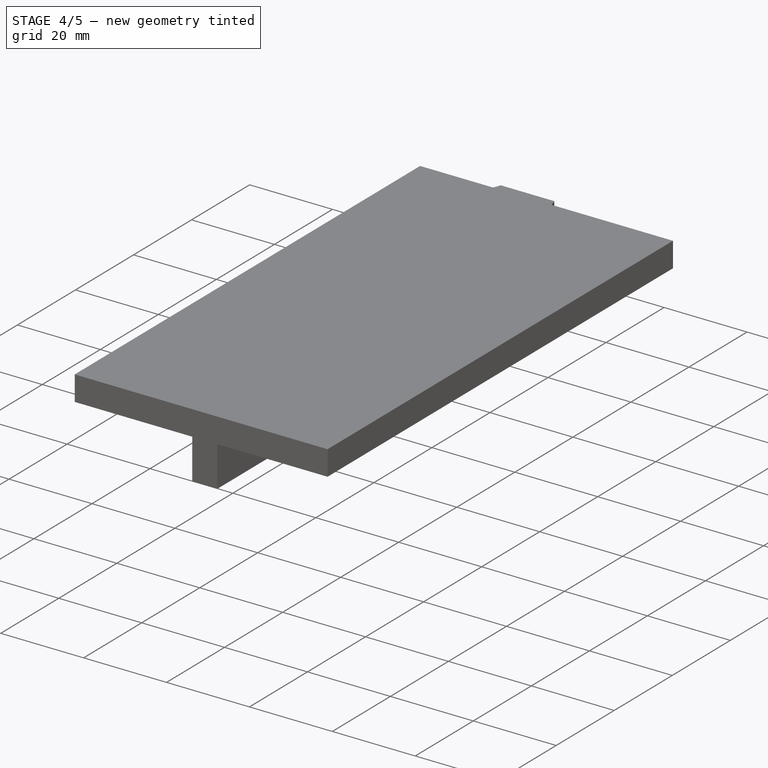
[diagram: stage 4 of 5 — iso view after this stage's code; geometry added in this stage tinted green]
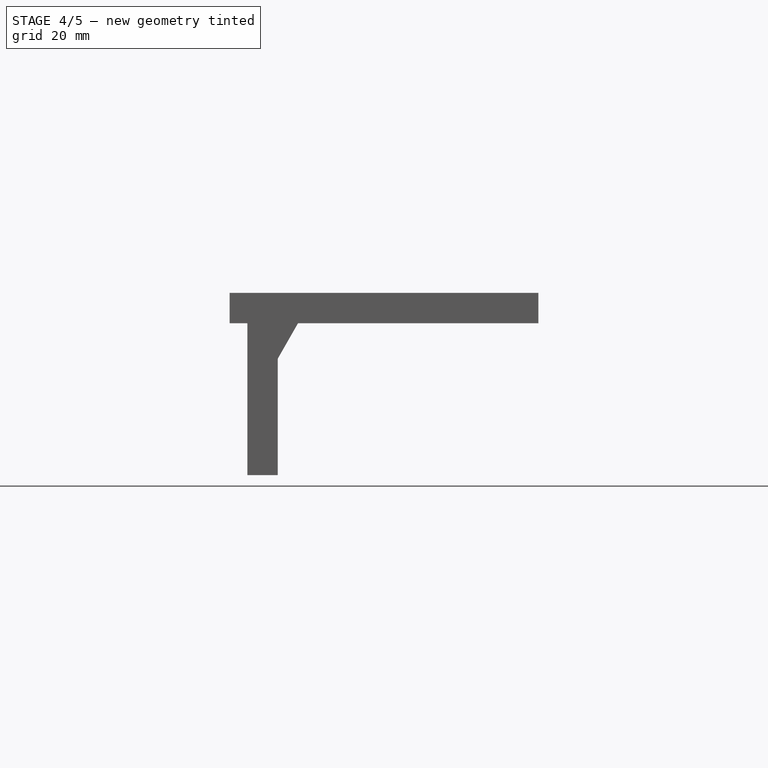
[diagram: stage 4 of 5 — front view after this stage's code; geometry added in this stage tinted green]
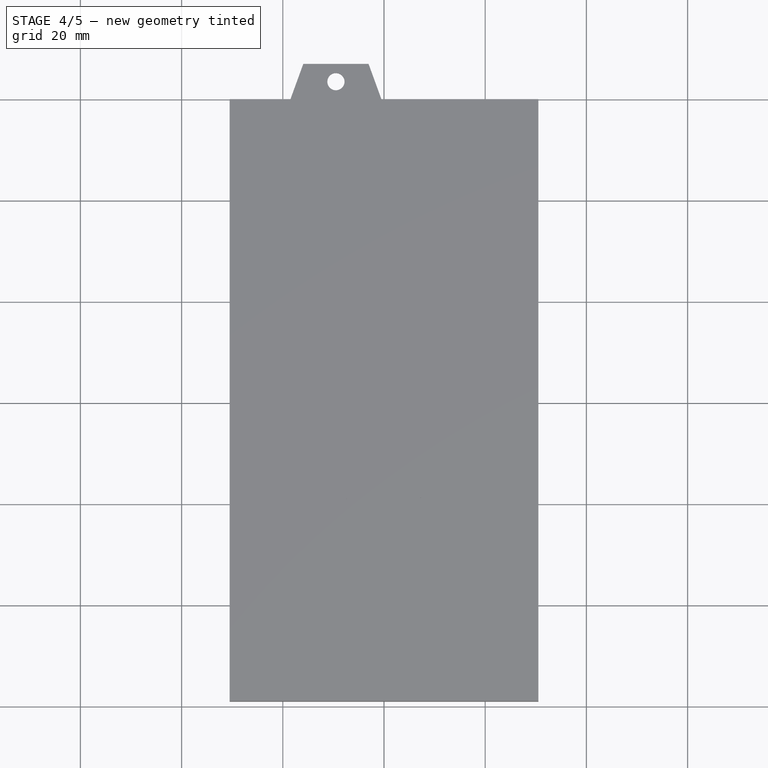
[diagram: stage 4 of 5 — top view after this stage's code; geometry added in this stage tinted green]
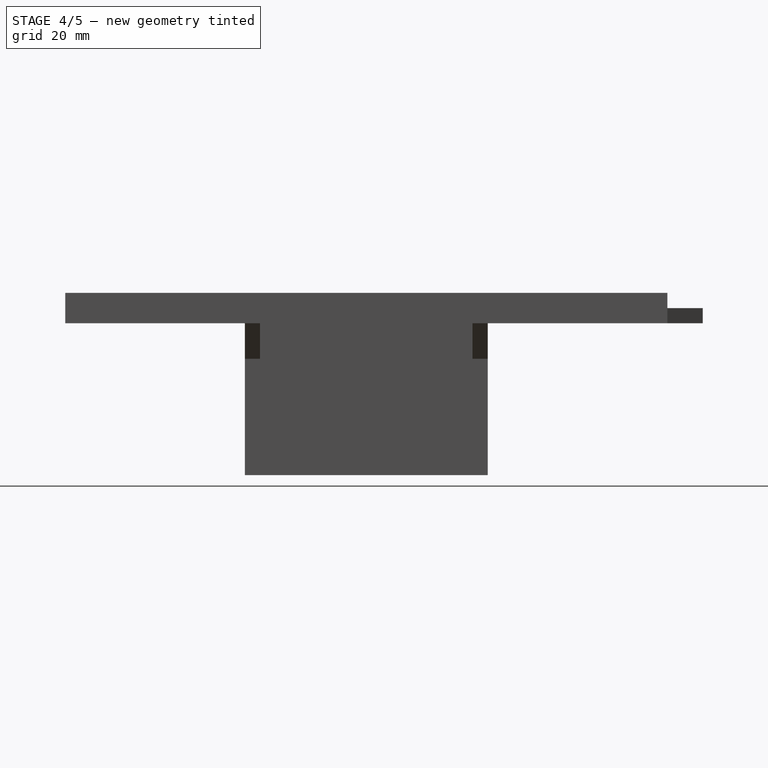
[diagram: stage 4 of 5 — right view after this stage's code; geometry added in this stage tinted green]
FEATURE [Sketcher::SketchObject] Sketch003
  AttachmentSupport = -> [Pad001]
  ExternalGeometry = -> [Binder001,Pad001]
  FullyConstrained = false
  MakeInternals = false
  MapMode = 5
  Placement = pos=(0,-24,0) rot=(1,0,0;1.5708rad)
  sketch-geometry (3):
    g0: LineSegment StartX=-21 StartY=0 StartZ=0 EndX=-21 EndY=-7 EndZ=0
    g1: LineSegment StartX=-21 StartY=-7 StartZ=0 EndX=-17 EndY=0 EndZ=0
    g2: LineSegment StartX=-17 StartY=0 StartZ=0 EndX=-21 EndY=0 EndZ=0
  constraints (7):
    c: Coincident(g0,g1)
    c: Coincident(g1,g2)
    c: DistanceX(g2,g2) = 4
    c: DistanceY(g0,g0) = 7
    c: Coincident(g2,g0)
    c: Horizontal(g2)
    c: PointOnObject(g1,g-1)
FEATURE [PartDesign::Pad] Pad002
  BaseFeature = -> Pad001
  Direction = (0,-1,2e-16)
  Length = 3
  Length2 = 10
  Profile = -> Sketch003
  ReferenceAxis = -> Sketch003 [N_Axis]
  Reversed = true
  Suppressed = false
  Type = 0
FEATURE [PartDesign::Mirrored] Mirrored
  BaseFeature = -> Pad002
  MirrorPlane = -> XZ_Plane003
  Originals = -> [Pad002]
  Suppressed = false
  TransformMode = 0
FEATURE [PartDesign::Body] Body001
  AllowCompound = false
  Group = -> [Binder,Pad,Sketch001,Hole,Sketch005,Pocket,Fillet,Sketch006,Pocket001,Sketch007,Pocket002]
  Origin = -> Origin002
  Tip = -> Pocket002
FEATURE [PartDesign::SubShapeBinder] Binder006
  BindCopyOnChange = 0
  BindMode = 0
  ClaimChildren = false
  Context = -> Part001 [Body005.Binder006.]
  Fuse = false
  MakeFace = true
  OffsetFill = false
  OffsetIntersection = false
  OffsetJoinType = 0
  OffsetOpenResult = false
  PartialLoad = false
  Relative = true
  Support = -> [Body004[Sketch008.]]
  _Version = 2
FEATURE [PartDesign::SubShapeBinder] Binder007
  BindCopyOnChange = 0
  BindMode = 0
  ClaimChildren = false
  Context = -> Part001 [Body006.Binder007.]
  Fuse = false
  MakeFace = true
  OffsetFill = false
  OffsetIntersection = false
  OffsetJoinType = 0
  OffsetOpenResult = false
  PartialLoad = false
  Relative = true
  Support = -> [Body004[Sketch008.]]
  _Version = 2
FEATURE [PartDesign::Pad] Pad003
  Direction = (0,0,1)
  Length = 6
  Length2 = 10
  Profile = -> Binder006
  Suppressed = false
  Type = 0
FEATURE [Sketcher::SketchObject] Sketch008
  AttachmentSupport = -> [XY_Plane006]
  FullyConstrained = true
  MakeInternals = false
  MapMode = 5
  sketch-geometry (5):
    g0: LineSegment StartX=-21 StartY=-24 StartZ=0 EndX=21 EndY=-24 EndZ=0
    g1: LineSegment StartX=21 StartY=-24 StartZ=0 EndX=21 EndY=24 EndZ=0
    g2: LineSegment StartX=21 StartY=24 StartZ=0 EndX=-21 EndY=24 EndZ=0
    g3: LineSegment StartX=-21 StartY=24 StartZ=0 EndX=-21 EndY=-24 EndZ=0
    g4: GeomPoint X=0 Y=0 Z=0
  constraints (12):
    c: Coincident(g0,g1)
    c: Coincident(g1,g2)
    c: Coincident(g2,g3)
    c: Coincident(g3,g0)
    c: Horizontal(g0)
    c: Horizontal(g2)
    c: Vertical(g1)
    c: Vertical(g3)
    c: Symmetric(g2,g0,g4)
    c: Coincident(g4,g-1)
    c: DistanceY(g3,g3) = 48
    c: DistanceX(g2,g2) = 42
FEATURE [PartDesign::Body] Body004  label="Master001"
  AllowCompound = false
  Group = -> [Sketch008]
  Origin = -> Origin006
FEATURE [Sketcher::SketchObject] Sketch009
  AttachmentSupport = -> [Pad003]
  FullyConstrained = true
  MakeInternals = false
  MapMode = 5
  Placement = pos=(0,0,6) rot=(0,0,1;0rad)
  sketch-geometry (9):
    g0: LineSegment StartX=-16.5 StartY=-16.5 StartZ=0 EndX=16.5 EndY=-16.5 EndZ=0
    g1: LineSegment StartX=16.5 StartY=-16.5 StartZ=0 EndX=16.5 EndY=16.5 EndZ=0
    g2: LineSegment StartX=16.5 StartY=16.5 StartZ=0 EndX=-16.5 EndY=16.5 EndZ=0
    g3: LineSegment StartX=-16.5 StartY=16.5 StartZ=0 EndX=-16.5 EndY=-16.5 EndZ=0
    g4: GeomPoint X=0 Y=0 Z=0
    g5: Circle CenterX=-16.5 CenterY=16.5 CenterZ=0 NormalX=0 NormalY=0 NormalZ=1 AngleXU=0 Radius=1.5
    g6: Circle CenterX=-16.5 CenterY=-16.5 CenterZ=0 NormalX=0 NormalY=0 NormalZ=1 AngleXU=0 Radius=1.5
    g7: Circle CenterX=16.5 CenterY=-16.5 CenterZ=0 NormalX=0 NormalY=0 NormalZ=1 AngleXU=0 Radius=1.5
    g8: Circle CenterX=16.5 CenterY=16.5 CenterZ=0 NormalX=0 NormalY=0 NormalZ=1 AngleXU=0 Radius=1.5
  constraints (20):
    c: Coincident(g0,g1)
    c: Coincident(g1,g2)
    c: Coincident(g2,g3)
    c: Coincident(g3,g0)
    c: Horizontal(g0)
    c: Horizontal(g2)
    c: Vertical(g1)
    c: Vertical(g3)
    c: Symmetric(g2,g0,g4)
    c: Coincident(g4,g-1)
    c: Equal(g2,g3)
    c: DistanceX(g2,g2) = 33
    c: Coincident(g5,g2)
    c: Coincident(g6,g0)
    c: Coincident(g7,g0)
    c: Coincident(g8,g1)
    c: Equal(g5,g8)
    c: Equal(g8,g7)
    c: Equal(g7,g6)
    c: Diameter(g5) = 3
FEATURE [PartDesign::Hole] Hole002
  BaseFeature = -> Pad003
  CustomThreadClearance = 0
  Depth = 120.592
  DepthType = 1
  Diameter = 3.4
  DrillForDepth = false
  DrillPoint = 1
  DrillPointAngle = 118
  HoleCutCountersinkAngle = 90
  HoleCutCustomValues = false
  HoleCutDepth = 0
  HoleCutDiameter = 6.1
  HoleCutType = 2
  ModelThread = false
  Profile = -> Sketch009
  Suppressed = false
  Tapered = false
  TaperedAngle = 90
  ThreadClass = 0
  ThreadDepth = 120.592
  ThreadDepthType = 0
  ThreadDirection = 0
  ThreadFit = 0
  ThreadSize = 9
  ThreadType = 1
  Threaded = false
  UseCustomThreadClearance = false
FEATURE [Sketcher::SketchObject] Sketch010
  AttachmentSupport = -> [Binder007]
  ExternalGeometry = -> [Binder007]
  FullyConstrained = true
  MakeInternals = false
  MapMode = 5
  sketch-geometry (4):
    g0: LineSegment StartX=-21 StartY=24 StartZ=0 EndX=-27 EndY=24 EndZ=0
    g1: LineSegment StartX=-27 StartY=24 StartZ=0 EndX=-27 EndY=-24 EndZ=0
    g2: LineSegment StartX=-27 StartY=-24 StartZ=0 EndX=-21 EndY=-24 EndZ=0
    g3: LineSegment StartX=-21 StartY=-24 StartZ=0 EndX=-21 EndY=24 EndZ=0
  constraints (10):
    c: Coincident(g0,g1)
    c: Coincident(g1,g2)
    c: Coincident(g2,g3)
    c: Coincident(g3,g0)
    c: Horizontal(g0)
    c: Horizontal(g2)
    c: Vertical(g1)
    c: Coincident(g0,g-3)
    c: Coincident(g2,g-3)
    c: DistanceX(g2,g2) = 6
FEATURE [PartDesign::Pad] Pad004
  Direction = (0,0,1)
  Length = 6
  Length2 = 30
  Profile = -> Sketch010
  ReferenceAxis = -> Sketch010 [N_Axis]
  Suppressed = false
  Type = 4
FEATURE [Sketcher::SketchObject] Sketch013
  AttachmentSupport = -> [Hole002]
  ExternalGeometry = -> [Sketch009]
  FullyConstrained = true
  MakeInternals = false
  MapMode = 5
  Placement = pos=(0,0,6) rot=(0,0,1;0rad)
  sketch-geometry (1):
    g0: Circle CenterX=-2e-16 CenterY=2e-16 CenterZ=0 NormalX=0 NormalY=0 NormalZ=1 AngleXU=0 Radius=12
  constraints (2):
    c: Symmetric(g-3,g-4,g0)
    c: Diameter(g0) = 24
FEATURE [PartDesign::Pocket] Pocket003
  BaseFeature = -> Hole002
  Direction = (0,0,-1)
  Length = 5
  Length2 = 5
  Profile = -> Sketch013
  ReferenceAxis = -> Sketch013 [N_Axis]
  Suppressed = false
  Type = 1
FEATURE [PartDesign::Fillet] Fillet001
  Base = -> Pocket003 [Edge21]
  BaseFeature = -> Pocket003
  Radius = 2
  SupportTransform = false
  Suppressed = false
  UseAllEdges = false
FEATURE [Sketcher::SketchObject] Sketch014
  AttachmentSupport = -> [Fillet001]
  ExternalGeometry = -> [Fillet001]
  FullyConstrained = true
  MakeInternals = false
  MapMode = 5
  Placement = pos=(0,0,6) rot=(0,0,1;0rad)
  sketch-geometry (4):
    g0: LineSegment StartX=-9 StartY=24 StartZ=0 EndX=-6.45221 EndY=17 EndZ=0
    g1: LineSegment StartX=-6.45221 StartY=17 StartZ=0 EndX=6.45221 EndY=17 EndZ=0
    g2: LineSegment StartX=6.45221 StartY=17 StartZ=0 EndX=9 EndY=24 EndZ=0
    g3: LineSegment StartX=9 StartY=24 StartZ=0 EndX=-9 EndY=24 EndZ=0
  constraints (10):
    c: PointOnObject(g0,g-4)
    c: Coincident(g0,g1)
    c: Coincident(g1,g2)
    c: Coincident(g2,g3)
    c: Coincident(g3,g0)
    c: Angle(g1,g0) = 1.91986
    c: DistanceX(g3,g3) = 18
    c: Distance(g3,g1) = 7
    c: Symmetric(g0,g1,g-2)
    c: Symmetric(g0,g2,g-2)
FEATURE [PartDesign::Pocket] Pocket004
  BaseFeature = -> Fillet001
  Direction = (0,0,-1)
  Length = 3
  Length2 = 5
  Profile = -> Sketch014
  ReferenceAxis = -> Sketch014 [N_Axis]
  Suppressed = false
  Type = 0
FEATURE [PartDesign::Body] Body005
  AllowCompound = false
  Group = -> [Binder006,Pad003,Sketch009,Hole002,Sketch013,Pocket003,Fillet001,Sketch014,Pocket004]
  Origin = -> Origin007
  Tip = -> Pocket004
FEATURE [PartDesign::SubShapeBinder] Binder008
  BindCopyOnChange = 0
  BindMode = 2
  ClaimChildren = false
  Context = -> Part001 [Body007.Binder008.]
  Fuse = false
  MakeFace = true
  OffsetFill = false
  OffsetIntersection = false
  OffsetJoinType = 0
  OffsetOpenResult = false
  PartialLoad = false
  Placement = pos=(-135.5,-24,0) rot=(-0.57735,0.57735,-0.57735;2.0944rad)
  Relative = true
  _Version = 2
FEATURE [PartDesign::Body] Body007
  AllowCompound = false
  Group = -> [Binder008]
  Origin = -> Origin009
FEATURE [PartDesign::SubShapeBinder] Binder009
  BindCopyOnChange = 0
  BindMode = 2
  ClaimChildren = false
  Context = -> Part001 [Body007.Binder009.]
  Fuse = false
  MakeFace = true
  OffsetFill = false
  OffsetIntersection = false
  OffsetJoinType = 0
  OffsetOpenResult = false
  PartialLoad = false
  Placement = pos=(-135.5,-24,0) rot=(-0.57735,0.57735,-0.57735;2.0944rad)
  Relative = true
  _Version = 2
FEATURE [Sketcher::SketchObject] Sketch016
  AttachmentSupport = -> [Binder009]
  ExternalGeometry = -> [Binder009]
  FullyConstrained = true
  MakeInternals = false
  MapMode = 5
  Placement = pos=(-21,-24,0) rot=(0.57735,-0.57735,0.57735;4.18879rad)
  sketch-geometry (2):
    g0: Circle CenterX=-32.5 CenterY=12.5 CenterZ=0 NormalX=0 NormalY=0 NormalZ=1 AngleXU=0 Radius=2
    g1: Circle CenterX=-8 CenterY=25.8112 CenterZ=0 NormalX=0 NormalY=0 NormalZ=1 AngleXU=0 Radius=2.65
  constraints (4):
    c: Coincident(g0,g-4)
    c: PointOnObject(g-4,g0)
    c: Coincident(g1,g-3)
    c: PointOnObject(g-3,g1)
FEATURE [PartDesign::Body] Body006
  AllowCompound = false
  Group = -> [Binder007,Sketch010,Pad004,Sketch011,Pad005,Mirrored001,Binder009,Sketch016]
  Origin = -> Origin008
  Tip = -> Mirrored001
FEATURE [App::Part] Part001  label="MH002"
  Group = -> [Body004,Body005,Body006,Body007]
  Origin = -> Origin005
FEATURE [PartDesign::SubShapeBinder] Binder010
  BindCopyOnChange = 0
  BindMode = 2
  ClaimChildren = false
  Context = -> Part001 [Body007.Binder010.]
  Fuse = false
  MakeFace = true
  OffsetFill = false
  OffsetIntersection = false
  OffsetJoinType = 0
  OffsetOpenResult = false
  PartialLoad = false
  Placement = pos=(-135.5,-191,0) rot=(-0.57735,0.57735,-0.57735;2.0944rad)
  Relative = true
  _Version = 2
FEATURE [PartDesign::Body] Body003
  AllowCompound = false
  Group = -> [Binder010]
  Origin = -> Origin004
FEATURE [PartDesign::SubShapeBinder] Binder011
  BindCopyOnChange = 0
  BindMode = 2
  ClaimChildren = false
  Context = -> Part001 [Body007.Binder010.]
  Fuse = false
  MakeFace = true
  OffsetFill = false
  OffsetIntersection = false
  OffsetJoinType = 0
  OffsetOpenResult = false
  PartialLoad = false
  Placement = pos=(-135.5,-191,0) rot=(-0.57735,0.57735,-0.57735;2.0944rad)
  Relative = true
  _Version = 2
FEATURE [Sketcher::SketchObject] Sketch017
  AttachmentSupport = -> [Binder011]
  ExternalGeometry = -> [Binder011]
  FullyConstrained = true
  MakeInternals = false
  MapMode = 5
  Placement = pos=(-21,-191,0) rot=(0.57735,-0.57735,0.57735;4.18879rad)
  sketch-geometry (2):
    g0: Circle CenterX=-190 CenterY=25.5018 CenterZ=0 NormalX=0 NormalY=0 NormalZ=1 AngleXU=0 Radius=2.65
    g1: Circle CenterX=-182.5 CenterY=12.5 CenterZ=0 NormalX=0 NormalY=0 NormalZ=1 AngleXU=0 Radius=2
  constraints (4):
    c: Coincident(g0,g-3)
    c: PointOnObject(g-3,g0)
    c: Coincident(g1,g-4)
    c: PointOnObject(g-4,g1)
FEATURE [PartDesign::Hole] Hole004
  BaseFeature = -> Mirrored
  CustomThreadClearance = 0
  Depth = 25
  DepthType = 0
  Diameter = 4.5
  DrillForDepth = false
  DrillPoint = 1
  DrillPointAngle = 118
  HoleCutCountersinkAngle = 90
  HoleCutCustomValues = false
  HoleCutDepth = 0
  HoleCutDiameter = 6.1
  HoleCutType = 2
  ModelThread = false
  Profile = -> Sketch017
  Suppressed = false
  Tapered = false
  TaperedAngle = 90
  ThreadClass = 0
  ThreadDepth = 25
  ThreadDepthType = 0
  ThreadDirection = 0
  ThreadFit = 0
  ThreadSize = 11
  ThreadType = 1
  Threaded = false
  UseCustomThreadClearance = false
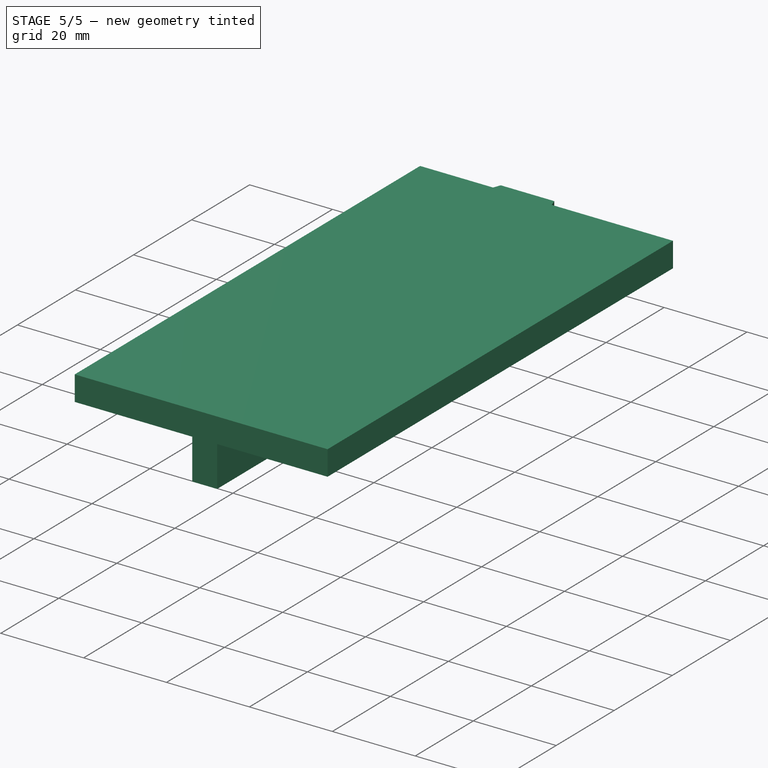
[diagram: stage 5 of 5 — iso view after this stage's code; geometry added in this stage tinted green]
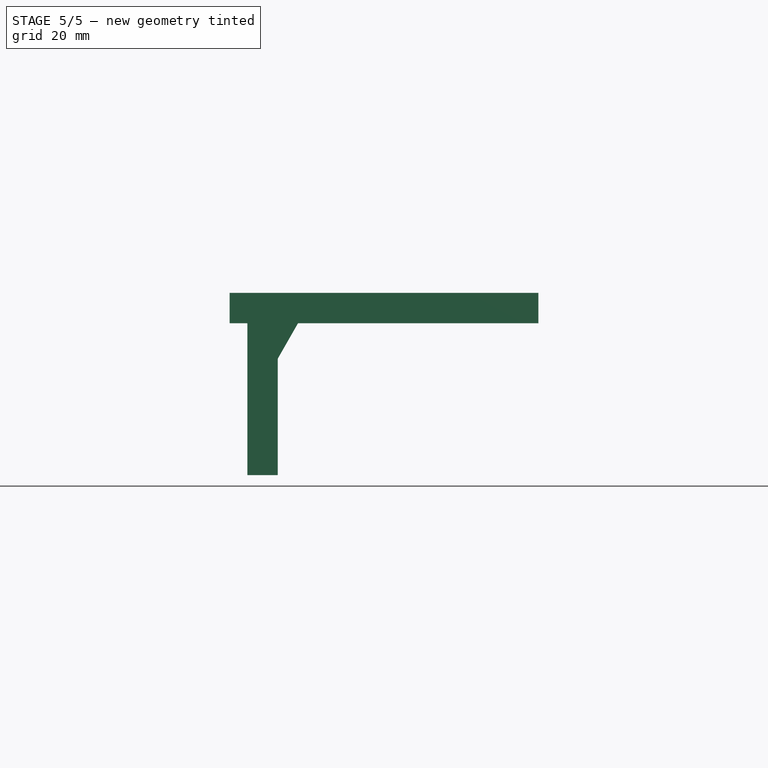
[diagram: stage 5 of 5 — front view after this stage's code; geometry added in this stage tinted green]
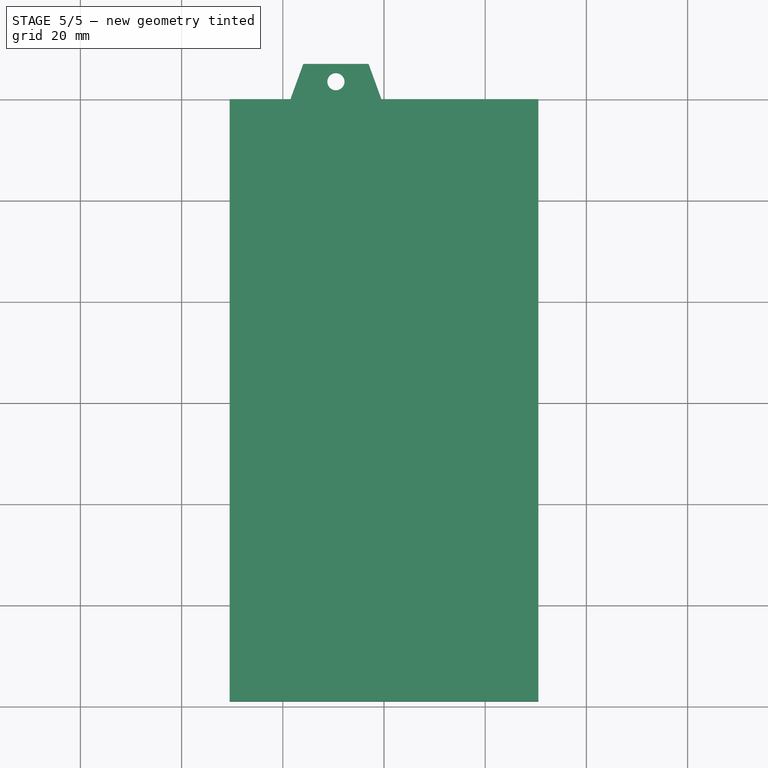
[diagram: stage 5 of 5 — top view after this stage's code; geometry added in this stage tinted green]
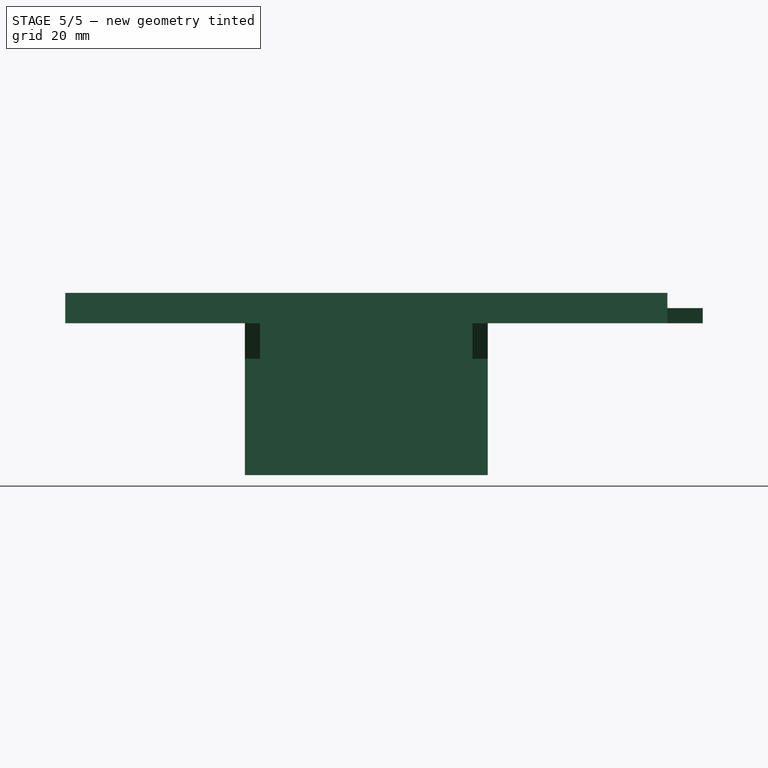
[diagram: stage 5 of 5 — right view after this stage's code; geometry added in this stage tinted green]
FEATURE [Sketcher::SketchObject] Sketch
  AttachmentSupport = -> [XY_Plane001]
  FullyConstrained = true
  MakeInternals = false
  MapMode = 5
  sketch-geometry (5):
    g0: LineSegment StartX=-21 StartY=-24 StartZ=0 EndX=21 EndY=-24 EndZ=0
    g1: LineSegment StartX=21 StartY=-24 StartZ=0 EndX=21 EndY=24 EndZ=0
    g2: LineSegment StartX=21 StartY=24 StartZ=0 EndX=-21 EndY=24 EndZ=0
    g3: LineSegment StartX=-21 StartY=24 StartZ=0 EndX=-21 EndY=-24 EndZ=0
    g4: GeomPoint X=0 Y=0 Z=0
  constraints (12):
    c: Coincident(g0,g1)
    c: Coincident(g1,g2)
    c: Coincident(g2,g3)
    c: Coincident(g3,g0)
    c: Horizontal(g0)
    c: Horizontal(g2)
    c: Vertical(g1)
    c: Vertical(g3)
    c: Symmetric(g2,g0,g4)
    c: Coincident(g4,g-1)
    c: DistanceY(g3,g3) = 48
    c: DistanceX(g2,g2) = 42
FEATURE [PartDesign::Body] Body  label="Master"
  AllowCompound = false
  Group = -> [Sketch]
  Origin = -> Origin001
FEATURE [PartDesign::SubShapeBinder] Binder
  BindCopyOnChange = 0
  BindMode = 0
  ClaimChildren = false
  Context = -> Part [Body001.Binder.]
  Fuse = false
  MakeFace = true
  OffsetFill = false
  OffsetIntersection = false
  OffsetJoinType = 0
  OffsetOpenResult = false
  PartialLoad = false
  Relative = true
  Support = -> [Body[Sketch.]]
  _Version = 2
FEATURE [PartDesign::Pad] Pad
  Direction = (0,0,1)
  Length = 6
  Length2 = 10
  Profile = -> Binder
  Suppressed = false
  Type = 0
FEATURE [Sketcher::SketchObject] Sketch001
  AttachmentSupport = -> [Pad]
  FullyConstrained = true
  MakeInternals = false
  MapMode = 5
  Placement = pos=(0,0,6) rot=(0,0,1;0rad)
  sketch-geometry (9):
    g0: LineSegment StartX=-16.5 StartY=-16.5 StartZ=0 EndX=16.5 EndY=-16.5 EndZ=0
    g1: LineSegment StartX=16.5 StartY=-16.5 StartZ=0 EndX=16.5 EndY=16.5 EndZ=0
    g2: LineSegment StartX=16.5 StartY=16.5 StartZ=0 EndX=-16.5 EndY=16.5 EndZ=0
    g3: LineSegment StartX=-16.5 StartY=16.5 StartZ=0 EndX=-16.5 EndY=-16.5 EndZ=0
    g4: GeomPoint X=0 Y=0 Z=0
    g5: Circle CenterX=-16.5 CenterY=16.5 CenterZ=0 NormalX=0 NormalY=0 NormalZ=1 AngleXU=0 Radius=1.5
    g6: Circle CenterX=-16.5 CenterY=-16.5 CenterZ=0 NormalX=0 NormalY=0 NormalZ=1 AngleXU=0 Radius=1.5
    g7: Circle CenterX=16.5 CenterY=-16.5 CenterZ=0 NormalX=0 NormalY=0 NormalZ=1 AngleXU=0 Radius=1.5
    g8: Circle CenterX=16.5 CenterY=16.5 CenterZ=0 NormalX=0 NormalY=0 NormalZ=1 AngleXU=0 Radius=1.5
  constraints (20):
    c: Coincident(g0,g1)
    c: Coincident(g1,g2)
    c: Coincident(g2,g3)
    c: Coincident(g3,g0)
    c: Horizontal(g0)
    c: Horizontal(g2)
    c: Vertical(g1)
    c: Vertical(g3)
    c: Symmetric(g2,g0,g4)
    c: Coincident(g4,g-1)
    c: Equal(g2,g3)
    c: DistanceX(g2,g2) = 33
    c: Coincident(g5,g2)
    c: Coincident(g6,g0)
    c: Coincident(g7,g0)
    c: Coincident(g8,g1)
    c: Equal(g5,g8)
    c: Equal(g8,g7)
    c: Equal(g7,g6)
    c: Diameter(g5) = 3
FEATURE [PartDesign::Hole] Hole
  BaseFeature = -> Pad
  CustomThreadClearance = 0
  Depth = 120.592
  DepthType = 1
  Diameter = 3.4
  DrillForDepth = false
  DrillPoint = 1
  DrillPointAngle = 118
  HoleCutCountersinkAngle = 90
  HoleCutCustomValues = false
  HoleCutDepth = 0
  HoleCutDiameter = 6.1
  HoleCutType = 2
  ModelThread = false
  Profile = -> Sketch001
  Suppressed = false
  Tapered = false
  TaperedAngle = 90
  ThreadClass = 0
  ThreadDepth = 120.592
  ThreadDepthType = 0
  ThreadDirection = 0
  ThreadFit = 0
  ThreadSize = 9
  ThreadType = 1
  Threaded = false
  UseCustomThreadClearance = false
FEATURE [Part::Feature] Part__Feature  label="MEANWELL_LRS-350-24"
  shape: bbox 215.2 x 30.07 x 115 mm, 1466 faces (baked)
FEATURE [Sketcher::SketchObject] Sketch005
  AttachmentSupport = -> [Hole]
  ExternalGeometry = -> [Sketch001]
  FullyConstrained = true
  MakeInternals = false
  MapMode = 5
  Placement = pos=(0,0,6) rot=(0,0,1;0rad)
  sketch-geometry (1):
    g0: Circle CenterX=-2e-16 CenterY=2e-16 CenterZ=0 NormalX=0 NormalY=0 NormalZ=1 AngleXU=0 Radius=12
  constraints (2):
    c: Symmetric(g-3,g-4,g0)
    c: Diameter(g0) = 24
FEATURE [PartDesign::Pocket] Pocket
  BaseFeature = -> Hole
  Direction = (0,0,-1)
  Length = 5
  Length2 = 5
  Profile = -> Sketch005
  ReferenceAxis = -> Sketch005 [N_Axis]
  Suppressed = false
  Type = 1
FEATURE [PartDesign::Fillet] Fillet
  Base = -> Pocket [Edge21]
  BaseFeature = -> Pocket
  Radius = 2
  SupportTransform = false
  Suppressed = false
  UseAllEdges = false
FEATURE [Sketcher::SketchObject] Sketch006
  AttachmentSupport = -> [Fillet]
  ExternalGeometry = -> [Fillet]
  FullyConstrained = true
  MakeInternals = false
  MapMode = 5
  Placement = pos=(0,0,6) rot=(0,0,1;0rad)
  sketch-geometry (4):
    g0: LineSegment StartX=-9 StartY=-24 StartZ=0 EndX=-6.45221 EndY=-17 EndZ=0
    g1: LineSegment StartX=-6.45221 StartY=-17 StartZ=0 EndX=6.45221 EndY=-17 EndZ=0
    g2: LineSegment StartX=6.45221 StartY=-17 StartZ=0 EndX=9 EndY=-24 EndZ=0
    g3: LineSegment StartX=9 StartY=-24 StartZ=0 EndX=-9 EndY=-24 EndZ=0
  constraints (10):
    c: PointOnObject(g0,g-3)
    c: Coincident(g0,g1)
    c: Coincident(g1,g2)
    c: Coincident(g2,g3)
    c: Coincident(g3,g0)
    c: Symmetric(g0,g2,g-2)
    c: Symmetric(g0,g1,g-2)
    c: Angle(g0,g1) = 1.91986
    c: DistanceX(g3,g3) = 18
    c: Distance(g3,g1) = 7
FEATURE [PartDesign::Pocket] Pocket001
  BaseFeature = -> Fillet
  Direction = (0,0,-1)
  Length = 3
  Length2 = 5
  Profile = -> Sketch006
  ReferenceAxis = -> Sketch006 [N_Axis]
  Suppressed = false
  Type = 0
FEATURE [Sketcher::SketchObject] Sketch007
  AttachmentSupport = -> [Pocket001]
  ExternalGeometry = -> [Pocket001]
  FullyConstrained = true
  MakeInternals = false
  MapMode = 5
  Placement = pos=(0,0,3) rot=(0,0,1;0rad)
  sketch-geometry (2):
    g0: Circle CenterX=0 CenterY=-20.5 CenterZ=0 NormalX=0 NormalY=0 NormalZ=1 AngleXU=0 Radius=1.5
    g1: LineSegment StartX=0 StartY=-17 StartZ=0 EndX=0 EndY=-24 EndZ=0
  constraints (5):
    c: PointOnObject(g0,g-2)
    c: Symmetric(g-3,g-3,g1)
    c: PointOnObject(g1,g-4)
    c: Symmetric(g1,g1,g0)
    c: Diameter(g0) = 3
FEATURE [PartDesign::Pocket] Pocket002
  BaseFeature = -> Pocket001
  Direction = (0,0,-1)
  Length = 5
  Length2 = 5
  Profile = -> Sketch007
  ReferenceAxis = -> Sketch007 [N_Axis]
  Suppressed = false
  Type = 1
FEATURE [Sketcher::SketchObject] Sketch011
  AttachmentSupport = -> [Pad004]
  ExternalGeometry = -> [Binder007,Pad004]
  FullyConstrained = true
  MakeInternals = false
  MapMode = 5
  Placement = pos=(0,-24,0) rot=(1,0,0;1.5708rad)
  sketch-geometry (3):
    g0: LineSegment StartX=-21 StartY=0 StartZ=0 EndX=-21 EndY=-7 EndZ=0
    g1: LineSegment StartX=-21 StartY=-7 StartZ=0 EndX=-17 EndY=0 EndZ=0
    g2: LineSegment StartX=-17 StartY=0 StartZ=0 EndX=-21 EndY=0 EndZ=0
  constraints (9):
    c: Coincident(g0,g1)
    c: Coincident(g1,g2)
    c: DistanceX(g2,g2) = 4
    c: DistanceY(g0,g0) = 7
    c: PointOnObject(g0,g-4)
    c: Coincident(g2,g0)
    c: PointOnObject(g0,g-4)
    c: Horizontal(g2)
    c: PointOnObject(g1,g-1)
FEATURE [PartDesign::Pad] Pad005
  BaseFeature = -> Pad004
  Direction = (0,-1,2e-16)
  Length = 3
  Length2 = 10
  Profile = -> Sketch011
  ReferenceAxis = -> Sketch011 [N_Axis]
  Reversed = true
  Suppressed = false
  Type = 0
FEATURE [PartDesign::Mirrored] Mirrored001
  BaseFeature = -> Pad005
  MirrorPlane = -> XZ_Plane008
  Originals = -> [Pad005]
  Suppressed = false
  TransformMode = 0
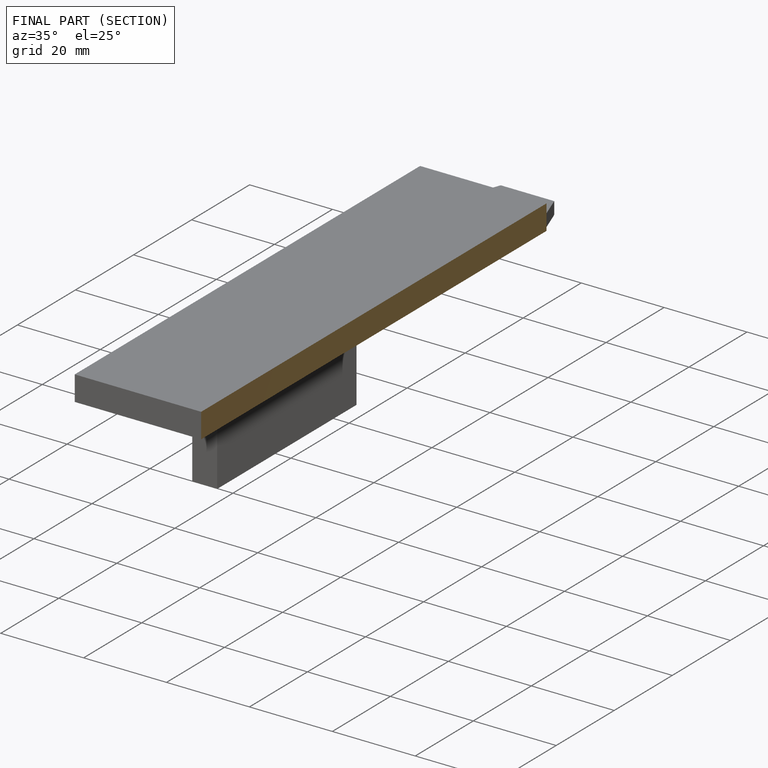
[diagram: finished part — half-section view (interior)]
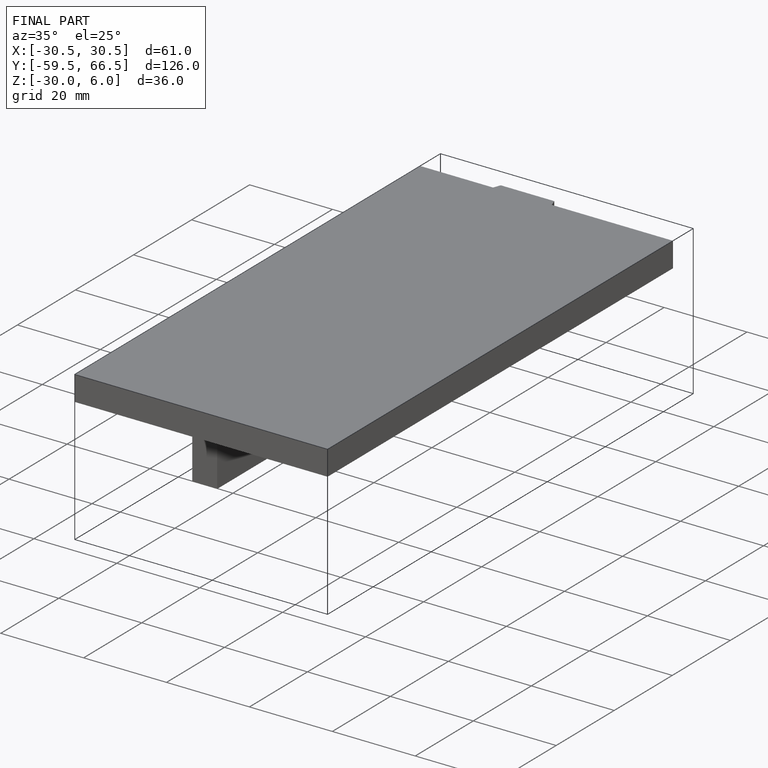
[diagram: finished part — iso view with bounding-box wireframe]
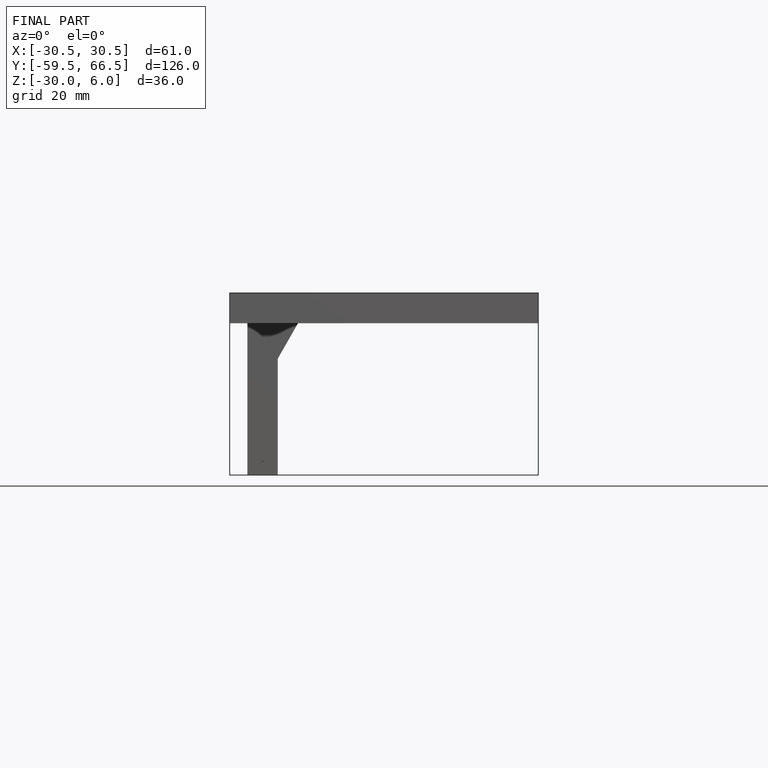
[diagram: finished part — front view with bounding-box wireframe]
